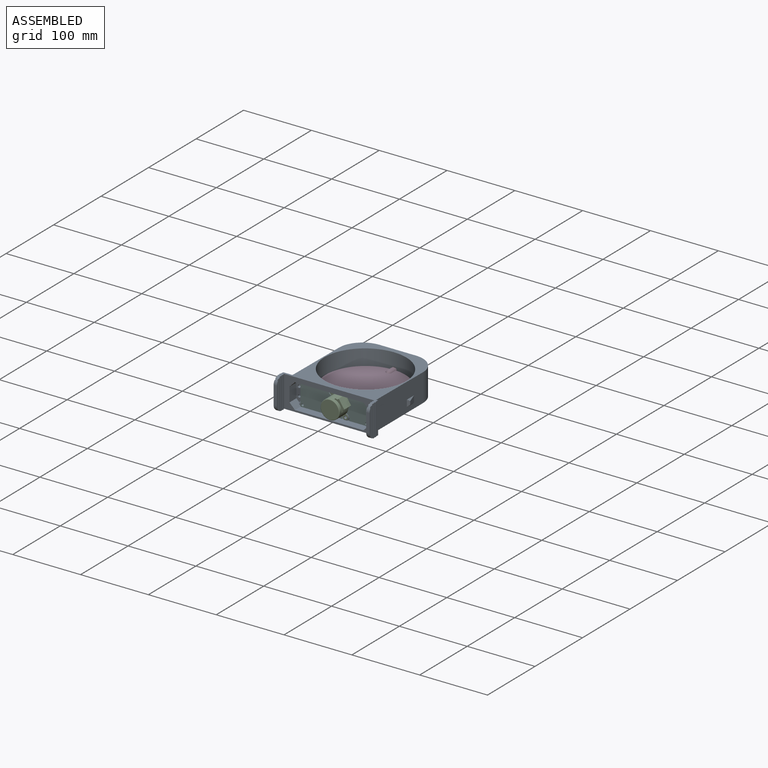
[diagram: assembled view]
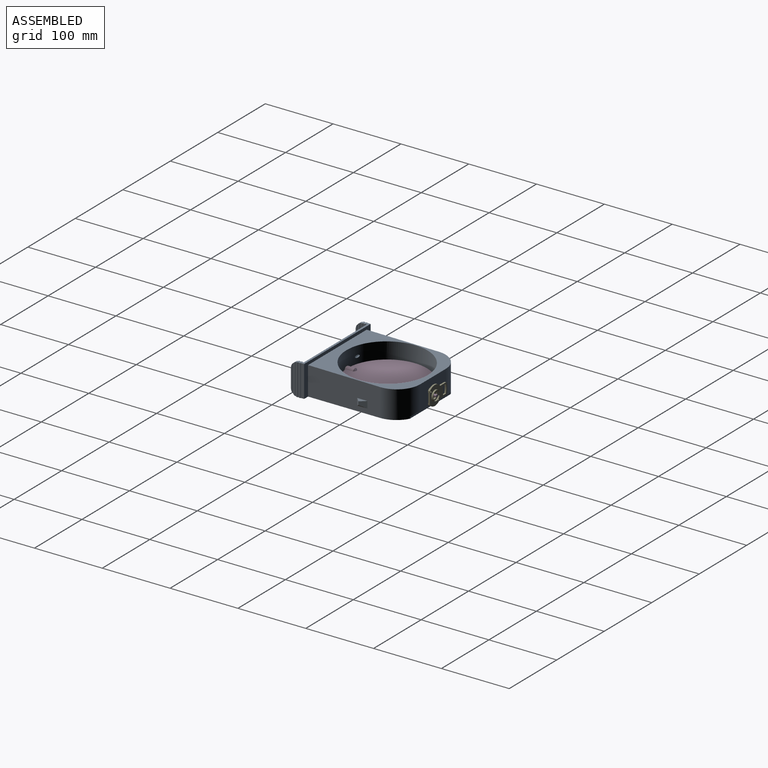
[diagram: assembled view, second angle]
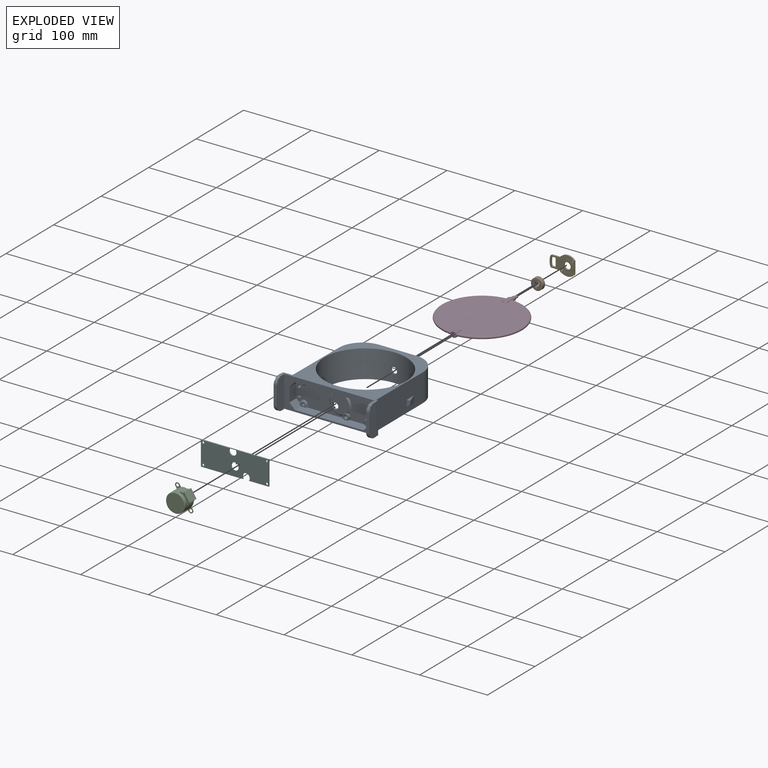
[diagram: exploded view]
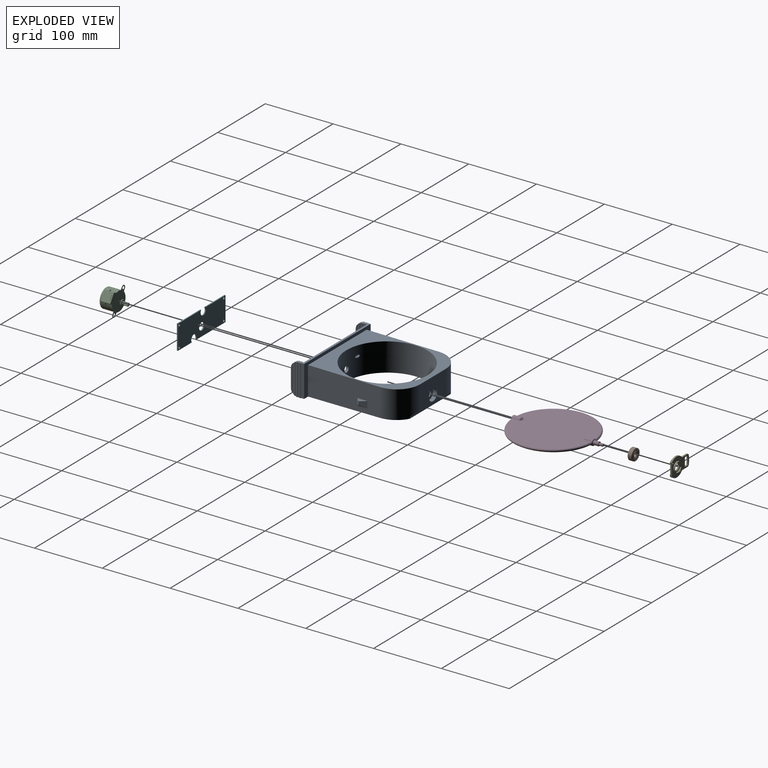
[diagram: exploded view, second angle]
FCSTD DOCUMENT  (FreeCAD 0.20R27936 (Git))
Label: Assembly
License: All rights reserved
LicenseURL: http://en.wikipedia.org/wiki/All_rights_reserved
objects: App::FeaturePython×43, Part::FeaturePython×41, App::Link×6
note: 40 computed .brp shape members not serialized (recipe doc carries the construction recipe); baked Part::Feature solids carry a one-line shape summary decoded from their .brp
EXTERNAL_REF file=OpenDucoValve.FCStd obj=Body
EXTERNAL_REF file=606Bearing.FCStd obj=Fusion
EXTERNAL_REF file=28BYJ-48.FCStd obj=Fusion
EXTERNAL_REF file=OpenDucoValve.FCStd obj=Body001
EXTERNAL_REF file=FP01-WDK02.FCStd obj=Body001
EXTERNAL_REF file=OpenDucoValve.FCStd obj=Body002

FEATURE [App::Link] Link  label="ValveBodyRefined"
  LinkedObject = -> <external OpenDucoValve.FCStd>#Body
FEATURE [App::Link] Link001  label="606Bearing"
  LinkPlacement = pos=(2.047e-13,64.5,16.5) rot=(0.989313,-0.1031,0.1031;1.58154rad)
  LinkedObject = -> <external 606Bearing.FCStd>#Fusion
  Placement = pos=(2.047e-13,64.5,16.5) rot=(0.989313,-0.1031,0.1031;1.58154rad)
FEATURE [App::Link] Link002  label="28BYJ-48"
  LinkPlacement = pos=(-2.2312e-12,-66,16.5) rot=(-0.799984,0.424279,0.424279;1.79213rad)
  LinkedObject = -> <external 28BYJ-48.FCStd>#Fusion
  Placement = pos=(-2.2312e-12,-66,16.5) rot=(-0.799984,0.424279,0.424279;1.79213rad)
FEATURE [App::Link] Link003  label="Disc"
  LinkPlacement = pos=(2.3609e-12,8.3631e-12,8.88118e-10) rot=(0,0,1;0rad)
  LinkedObject = -> <external OpenDucoValve.FCStd>#Body001
  Placement = pos=(2.3609e-12,8.3631e-12,8.88118e-10) rot=(0,0,1;0rad)
FEATURE [App::Link] Link005  label="FP01-WDK02"
  LinkPlacement = pos=(6.97438e-10,70.3,16.5) rot=(0.57735,0.57735,0.57735;4.18879rad)
  LinkedObject = -> <external FP01-WDK02.FCStd>#Body001
  Placement = pos=(6.97438e-10,70.3,16.5) rot=(0.57735,0.57735,0.57735;4.18879rad)
FEATURE [App::Link] Link006  label="PCB"
  LinkPlacement = pos=(-3.5949e-12,-1.4857e-12,-4.135e-13) rot=(0,0,1;0rad)
  LinkedObject = -> <external OpenDucoValve.FCStd>#Body002
  Placement = pos=(-3.5949e-12,-1.4857e-12,-4.135e-13) rot=(0,0,1;0rad)
FEATURE [Part::FeaturePython] Parts  # WARN: FeaturePython — macro-defined, semantics opaque (R4)
  Group = -> [Link,Link001,Link002,Link003,Link005,Link006]
  GroupMode = 0
FEATURE [Part::FeaturePython] Assembly  # WARN: FeaturePython — macro-defined, semantics opaque (R4)
  AutoRelax = true
  BuildShape = 0
  Freeze = false
  Group = -> [Constraints,Elements,Parts]
  Verbose = false
  _SolverType = 1
  _Version = 1
FEATURE [App::FeaturePython] Constraints  # WARN: FeaturePython — macro-defined, semantics opaque (R4)
  Group = -> [Constraint,Constraint001,Constraint002,Constraint003,Constraint004,Constraint005,Constraint006,Constraint007,Constraint008,Constraint009,Constraint010,Constraint011,Constraint012,Constraint013]
  _Version = 1
FEATURE [App::FeaturePython] Elements  # WARN: FeaturePython — macro-defined, semantics opaque (R4)
  Group = -> [_Element,_Element001,_Element002,_Element003,_Element004,_Element005,_Element006,_Element007,_Element008,_Element009,_Element010,_Element011,_Element012,_Element013,_Element014,_Element015,_Element016,_Element017,_Element018,_Element019,_Element020,_Element021,_Element022,_Element023,_Element024,_Element025,_Element026,_Element027,_Element028,_Element029,_Element030,_Element031,_Element032,+6 more]
FEATURE [App::FeaturePython] Constraint  label="Locked"  # WARN: FeaturePython — macro-defined, semantics opaque (R4)
  Disabled = false
  Group = -> [ElementLink]
  _ConstraintType = 0
  _Parent = -> Constraints
FEATURE [App::FeaturePython] ElementLink  label="_Element"  # link proxy (typed FeaturePython)
  LinkTransform = true
  LinkedObject = -> _Element
  _Parent = -> Constraint
FEATURE [Part::FeaturePython] _Element  # link proxy (typed FeaturePython)
  Detach = false
  LinkTransform = true
  LinkedObject = -> Link [Face2]
  _Parent = -> Elements
FEATURE [Part::FeaturePython] _Element001  # link proxy (typed FeaturePython)
  Detach = false
  LinkTransform = true
  LinkedObject = -> Link001 [Edge29]
  _Parent = -> Elements
FEATURE [Part::FeaturePython] _Element002  # link proxy (typed FeaturePython)
  Detach = false
  LinkTransform = true
  LinkedObject = -> Link [Edge341]
  _Parent = -> Elements
FEATURE [Part::FeaturePython] _Element003  # link proxy (typed FeaturePython)
  Detach = false
  LinkTransform = true
  LinkedObject = -> Link002 [Edge54]
  _Parent = -> Elements
FEATURE [Part::FeaturePython] _Element004  # link proxy (typed FeaturePython)
  Detach = false
  LinkTransform = true
  LinkedObject = -> Link [Edge408]
  _Parent = -> Elements
FEATURE [Part::FeaturePython] _Element005  # link proxy (typed FeaturePython)
  Detach = false
  LinkTransform = true
  LinkedObject = -> Link [Edge409]
  _Parent = -> Elements
FEATURE [Part::FeaturePython] _Element006  # link proxy (typed FeaturePython)
  Detach = false
  LinkTransform = true
  LinkedObject = -> Link [Face136]
  _Parent = -> Elements
FEATURE [Part::FeaturePython] _Element007  # link proxy (typed FeaturePython)
  Detach = false
  LinkTransform = true
  LinkedObject = -> Link002 [Face5]
  _Parent = -> Elements
FEATURE [Part::FeaturePython] _Element008  # link proxy (typed FeaturePython)
  Detach = false
  LinkTransform = true
  LinkedObject = -> Link [Face124]
  _Parent = -> Elements
FEATURE [Part::FeaturePython] _Element009  # link proxy (typed FeaturePython)
  Detach = false
  LinkTransform = true
  LinkedObject = -> Link [Edge396]
  _Parent = -> Elements
FEATURE [Part::FeaturePython] _Element010  # link proxy (typed FeaturePython)
  Detach = false
  LinkTransform = true
  LinkedObject = -> Link002 [Edge56]
  _Parent = -> Elements
FEATURE [Part::FeaturePython] _Element011  # link proxy (typed FeaturePython)
  Detach = false
  LinkTransform = true
  LinkedObject = -> Link [Edge366]
  _Parent = -> Elements
FEATURE [Part::FeaturePython] _Element012  # link proxy (typed FeaturePython)
  Detach = false
  LinkTransform = true
  LinkedObject = -> Link002 [Edge55]
  _Parent = -> Elements
FEATURE [App::FeaturePython] Constraint001  label="AxialAlignment"  # WARN: FeaturePython — macro-defined, semantics opaque (R4)
  Angle = 0
  AnglePitch = 0
  AngleRoll = 0
  Disabled = false
  Group = -> [ElementLink001,ElementLink002]
  LockAngle = false
  Multiply = false
  _ConstraintType = 36
  _Parent = -> Constraints
FEATURE [App::FeaturePython] ElementLink001  label="_Element013"  # link proxy (typed FeaturePython)
  LinkTransform = true
  LinkedObject = -> _Element013
  _Parent = -> Constraint001
FEATURE [Part::FeaturePython] _Element013  # link proxy (typed FeaturePython)
  Detach = false
  LinkTransform = true
  LinkedObject = -> Link001 [Face1]
  _Parent = -> Elements
FEATURE [App::FeaturePython] ElementLink002  label="_Element014"  # link proxy (typed FeaturePython)
  LinkTransform = true
  LinkedObject = -> _Element014
  _Parent = -> Constraint001
FEATURE [Part::FeaturePython] _Element014  # link proxy (typed FeaturePython)
  Detach = false
  LinkTransform = true
  LinkedObject = -> Link [Face106]
  _Parent = -> Elements
FEATURE [App::FeaturePython] Constraint002  label="PointInPlane"  # WARN: FeaturePython — macro-defined, semantics opaque (R4)
  Disabled = false
  Group = -> [ElementLink003,ElementLink004]
  _ConstraintType = 3
  _Parent = -> Constraints
FEATURE [App::FeaturePython] ElementLink003  label="_Element015"  # link proxy (typed FeaturePython)
  LinkTransform = true
  LinkedObject = -> _Element015
  _Parent = -> Constraint002
FEATURE [Part::FeaturePython] _Element015  # link proxy (typed FeaturePython)
  Detach = false
  LinkTransform = true
  LinkedObject = -> Link001 [Vertex4]
  _Parent = -> Elements
FEATURE [App::FeaturePython] ElementLink004  label="_Element016"  # link proxy (typed FeaturePython)
  LinkTransform = true
  LinkedObject = -> _Element016
  _Parent = -> Constraint002
FEATURE [Part::FeaturePython] _Element016  # link proxy (typed FeaturePython)
  Detach = false
  LinkTransform = true
  LinkedObject = -> Link [Face130]
  _Parent = -> Elements
FEATURE [App::FeaturePython] Constraint003  label="AxialAlignment001"  # WARN: FeaturePython — macro-defined, semantics opaque (R4)
  Angle = 0
  AnglePitch = 0
  AngleRoll = 0
  Disabled = false
  Group = -> [ElementLink005,ElementLink006]
  LockAngle = false
  Multiply = false
  _ConstraintType = 36
  _Parent = -> Constraints
FEATURE [App::FeaturePython] ElementLink005  label="_Element017"  # link proxy (typed FeaturePython)
  LinkTransform = true
  LinkedObject = -> _Element017
  _Parent = -> Constraint003
FEATURE [Part::FeaturePython] _Element017  # link proxy (typed FeaturePython)
  Detach = false
  LinkTransform = true
  LinkedObject = -> Link002 [Face22]
  _Parent = -> Elements
FEATURE [App::FeaturePython] ElementLink006  label="_Element018"  # link proxy (typed FeaturePython)
  LinkTransform = true
  LinkedObject = -> _Element018
  _Parent = -> Constraint003
FEATURE [Part::FeaturePython] _Element018  # link proxy (typed FeaturePython)
  Detach = false
  LinkTransform = true
  LinkedObject = -> Link [Face150]
  _Parent = -> Elements
FEATURE [App::FeaturePython] Constraint004  label="AxialAlignment002"  # WARN: FeaturePython — macro-defined, semantics opaque (R4)
  Angle = 0
  AnglePitch = 0
  AngleRoll = 0
  Disabled = false
  Group = -> [ElementLink007,ElementLink008]
  LockAngle = false
  Multiply = false
  _ConstraintType = 36
  _Parent = -> Constraints
FEATURE [App::FeaturePython] ElementLink007  label="_Element019"  # link proxy (typed FeaturePython)
  LinkTransform = true
  LinkedObject = -> _Element019
  _Parent = -> Constraint004
FEATURE [Part::FeaturePython] _Element019  # link proxy (typed FeaturePython)
  Detach = false
  LinkTransform = true
  LinkedObject = -> Link002 [Face9]
  _Parent = -> Elements
FEATURE [App::FeaturePython] ElementLink008  label="_Element020"  # link proxy (typed FeaturePython)
  LinkTransform = true
  LinkedObject = -> _Element020
  _Parent = -> Constraint004
FEATURE [Part::FeaturePython] _Element020  # link proxy (typed FeaturePython)
  Detach = false
  LinkTransform = true
  LinkedObject = -> Link [Face142]
  _Parent = -> Elements
FEATURE [App::FeaturePython] Constraint005  label="PointInPlane001"  # WARN: FeaturePython — macro-defined, semantics opaque (R4)
  Disabled = false
  Group = -> [ElementLink009,ElementLink010]
  _ConstraintType = 3
  _Parent = -> Constraints
FEATURE [App::FeaturePython] ElementLink009  label="_Element021"  # link proxy (typed FeaturePython)
  LinkTransform = true
  LinkedObject = -> _Element021
  _Parent = -> Constraint005
FEATURE [Part::FeaturePython] _Element021  # link proxy (typed FeaturePython)
  Detach = false
  LinkTransform = true
  LinkedObject = -> Link002 [Vertex2]
  _Parent = -> Elements
FEATURE [App::FeaturePython] ElementLink010  label="_Element022"  # link proxy (typed FeaturePython)
  LinkTransform = true
  LinkedObject = -> _Element022
  _Parent = -> Constraint005
FEATURE [Part::FeaturePython] _Element022  # link proxy (typed FeaturePython)
  Detach = false
  LinkTransform = true
  LinkedObject = -> Link [Face114]
  _Parent = -> Elements
FEATURE [App::FeaturePython] Constraint006  label="AxialAlignment003"  # WARN: FeaturePython — macro-defined, semantics opaque (R4)
  Angle = 0
  AnglePitch = 0
  AngleRoll = 0
  Disabled = false
  Group = -> [ElementLink011,ElementLink012]
  LockAngle = false
  Multiply = false
  _ConstraintType = 36
  _Parent = -> Constraints
FEATURE [App::FeaturePython] ElementLink011  label="_Element023"  # link proxy (typed FeaturePython)
  LinkTransform = true
  LinkedObject = -> _Element023
  _Parent = -> Constraint006
FEATURE [Part::FeaturePython] _Element023  # link proxy (typed FeaturePython)
  Detach = false
  LinkTransform = true
  LinkedObject = -> Link002 [Face59]
  _Parent = -> Elements
FEATURE [App::FeaturePython] ElementLink012  label="_Element024"  # link proxy (typed FeaturePython)
  LinkTransform = true
  LinkedObject = -> _Element024
  _Parent = -> Constraint006
FEATURE [Part::FeaturePython] _Element024  # link proxy (typed FeaturePython)
  Detach = false
  LinkTransform = true
  LinkedObject = -> Link003 [Chamfer.Face45]
  _Parent = -> Elements
FEATURE [App::FeaturePython] Constraint007  label="AxialAlignment004"  # WARN: FeaturePython — macro-defined, semantics opaque (R4)
  Angle = 0
  AnglePitch = 0
  AngleRoll = 0
  Disabled = false
  Group = -> [ElementLink013,ElementLink014]
  LockAngle = false
  Multiply = false
  _ConstraintType = 36
  _Parent = -> Constraints
FEATURE [App::FeaturePython] ElementLink013  label="_Element025"  # link proxy (typed FeaturePython)
  LinkTransform = true
  LinkedObject = -> _Element025
  _Parent = -> Constraint007
FEATURE [Part::FeaturePython] _Element025  # link proxy (typed FeaturePython)
  Detach = false
  LinkTransform = true
  LinkedObject = -> Link003 [Chamfer.Edge79]
  _Parent = -> Elements
FEATURE [App::FeaturePython] ElementLink014  label="_Element026"  # link proxy (typed FeaturePython)
  LinkTransform = true
  LinkedObject = -> _Element026
  _Parent = -> Constraint007
FEATURE [Part::FeaturePython] _Element026  # link proxy (typed FeaturePython)
  Detach = false
  LinkTransform = true
  LinkedObject = -> Link [Face39]
  _Parent = -> Elements
FEATURE [Part::FeaturePython] _Element027  # link proxy (typed FeaturePython)
  Detach = false
  LinkTransform = true
  LinkedObject = -> Link005 [Face1]
  _Parent = -> Elements
FEATURE [Part::FeaturePython] _Element028  # link proxy (typed FeaturePython)
  Detach = false
  LinkTransform = true
  LinkedObject = -> Link003 [Chamfer.Face50]
  _Parent = -> Elements
FEATURE [App::FeaturePython] Constraint008  label="AxialAlignment005"  # WARN: FeaturePython — macro-defined, semantics opaque (R4)
  Angle = 0
  AnglePitch = 0
  AngleRoll = 0
  Disabled = false
  Group = -> [ElementLink015,ElementLink016]
  LockAngle = false
  Multiply = false
  _ConstraintType = 36
  _Parent = -> Constraints
FEATURE [App::FeaturePython] ElementLink015  label="_Element027"  # link proxy (typed FeaturePython)
  LinkTransform = true
  LinkedObject = -> _Element027
  _Parent = -> Constraint008
FEATURE [App::FeaturePython] ElementLink016  label="_Element028"  # link proxy (typed FeaturePython)
  LinkTransform = true
  LinkedObject = -> _Element028
  _Parent = -> Constraint008
FEATURE [Part::FeaturePython] _Element029  # link proxy (typed FeaturePython)
  Detach = false
  LinkTransform = true
  LinkedObject = -> Link005 [Face7]
  _Parent = -> Elements
FEATURE [Part::FeaturePython] _Element030  # link proxy (typed FeaturePython)
  Detach = false
  LinkTransform = true
  LinkedObject = -> Link [Face105]
  _Parent = -> Elements
FEATURE [App::FeaturePython] Constraint009  label="PointInPlane002"  # WARN: FeaturePython — macro-defined, semantics opaque (R4)
  Disabled = false
  Group = -> [ElementLink017,ElementLink018]
  _ConstraintType = 3
  _Parent = -> Constraints
FEATURE [App::FeaturePython] ElementLink017  label="_Element031"  # link proxy (typed FeaturePython)
  LinkTransform = true
  LinkedObject = -> _Element031
  _Parent = -> Constraint009
FEATURE [Part::FeaturePython] _Element031  # link proxy (typed FeaturePython)
  Detach = false
  LinkTransform = true
  LinkedObject = -> Link005 [Vertex76]
  _Parent = -> Elements
FEATURE [App::FeaturePython] ElementLink018  label="_Element032"  # link proxy (typed FeaturePython)
  LinkTransform = true
  LinkedObject = -> _Element032
  _Parent = -> Constraint009
FEATURE [Part::FeaturePython] _Element032  # link proxy (typed FeaturePython)
  Detach = false
  LinkTransform = true
  LinkedObject = -> Link [Face41]
  _Parent = -> Elements
FEATURE [App::FeaturePython] Constraint010  label="AxialAlignment006"  # WARN: FeaturePython — macro-defined, semantics opaque (R4)
  Angle = 0
  AnglePitch = 0
  AngleRoll = 0
  Disabled = false
  Group = -> [ElementLink019,ElementLink020]
  LockAngle = false
  Multiply = false
  _ConstraintType = 36
  _Parent = -> Constraints
FEATURE [App::FeaturePython] ElementLink019  label="_Element030"  # link proxy (typed FeaturePython)
  LinkTransform = true
  LinkedObject = -> _Element030
  _Parent = -> Constraint010
FEATURE [App::FeaturePython] ElementLink020  label="_Element029"  # link proxy (typed FeaturePython)
  LinkTransform = true
  LinkedObject = -> _Element029
  _Parent = -> Constraint010
FEATURE [App::FeaturePython] Constraint011  label="PointInPlane003"  # WARN: FeaturePython — macro-defined, semantics opaque (R4)
  Disabled = false
  Group = -> [ElementLink021,ElementLink022]
  _ConstraintType = 3
  _Parent = -> Constraints
FEATURE [App::FeaturePython] ElementLink021  label="_Element033"  # link proxy (typed FeaturePython)
  LinkTransform = true
  LinkedObject = -> _Element033
  _Parent = -> Constraint011
FEATURE [Part::FeaturePython] _Element033  # link proxy (typed FeaturePython)
  Detach = false
  LinkTransform = true
  LinkedObject = -> Link006 [Pad007.Vertex7]
  _Parent = -> Elements
FEATURE [App::FeaturePython] ElementLink022  label="_Element034"  # link proxy (typed FeaturePython)
  LinkTransform = true
  LinkedObject = -> _Element034
  _Parent = -> Constraint011
FEATURE [Part::FeaturePython] _Element034  # link proxy (typed FeaturePython)
  Detach = false
  LinkTransform = true
  LinkedObject = -> Link [Face117]
  _Parent = -> Elements
FEATURE [App::FeaturePython] Constraint012  label="AxialAlignment007"  # WARN: FeaturePython — macro-defined, semantics opaque (R4)
  Angle = 0
  AnglePitch = 0
  AngleRoll = 0
  Disabled = false
  Group = -> [ElementLink023,ElementLink024]
  LockAngle = false
  Multiply = false
  _ConstraintType = 36
  _Parent = -> Constraints
FEATURE [App::FeaturePython] ElementLink023  label="_Element035"  # link proxy (typed FeaturePython)
  LinkTransform = true
  LinkedObject = -> _Element035
  _Parent = -> Constraint012
FEATURE [Part::FeaturePython] _Element035  # link proxy (typed FeaturePython)
  Detach = false
  LinkTransform = true
  LinkedObject = -> Link006 [Pad007.Face10]
  _Parent = -> Elements
FEATURE [App::FeaturePython] ElementLink024  label="_Element036"  # link proxy (typed FeaturePython)
  LinkTransform = true
  LinkedObject = -> _Element036
  _Parent = -> Constraint012
FEATURE [Part::FeaturePython] _Element036  # link proxy (typed FeaturePython)
  Detach = false
  LinkTransform = true
  LinkedObject = -> Link [Face144]
  _Parent = -> Elements
FEATURE [App::FeaturePython] Constraint013  label="AxialAlignment008"  # WARN: FeaturePython — macro-defined, semantics opaque (R4)
  Angle = 0
  AnglePitch = 0
  AngleRoll = 0
  Disabled = false
  Group = -> [ElementLink025,ElementLink026]
  LockAngle = false
  Multiply = false
  _ConstraintType = 36
  _Parent = -> Constraints
FEATURE [App::FeaturePython] ElementLink025  label="_Element037"  # link proxy (typed FeaturePython)
  LinkTransform = true
  LinkedObject = -> _Element037
  _Parent = -> Constraint013
FEATURE [Part::FeaturePython] _Element037  # link proxy (typed FeaturePython)
  Detach = false
  LinkTransform = true
  LinkedObject = -> Link [Face152]
  _Parent = -> Elements
FEATURE [App::FeaturePython] ElementLink026  label="_Element038"  # link proxy (typed FeaturePython)
  LinkTransform = true
  LinkedObject = -> _Element038
  _Parent = -> Constraint013
FEATURE [Part::FeaturePython] _Element038  # link proxy (typed FeaturePython)
  Detach = false
  LinkTransform = true
  LinkedObject = -> Link006 [Pad007.Face13]
  _Parent = -> Elements

RESOLVED EXTERNAL PARTS (link-assembly join: the EXTERNAL_REF files above that resolve inside this repo's crawl, each included once):
---- part 28BYJ-48.FCStd = doc fcstd_8f3ee90c708e ----
FCSTD DOCUMENT  (FreeCAD 0.20R27936 (Git))
Label: 28BYJ-48
License: All rights reserved
LicenseURL: http://en.wikipedia.org/wiki/All_rights_reserved
objects: Sketcher::SketchObject×13, PartDesign::Pad×8, Part::Part2DObjectPython×5, PartDesign::Body×5, PartDesign::Pocket×4, PartDesign::Fillet×1, PartDesign::Chamfer×1, Part::MultiFuse×1
note: 52 computed .brp shape members not serialized (recipe doc carries the construction recipe); baked Part::Feature solids carry a one-line shape summary decoded from their .brp

FEATURE [Sketcher::SketchObject] Sketch  label="Master Sketch"
  FullyConstrained = true
  MapMode = 5
  sketch-geometry (53):
    g0: Circle CenterX=0 CenterY=0 CenterZ=0 NormalX=0 NormalY=0 NormalZ=1 AngleXU=0 Radius=2.5
    g1: Circle CenterX=0 CenterY=0 CenterZ=0 NormalX=0 NormalY=0 NormalZ=1 AngleXU=0 Radius=4
    g2: Circle CenterX=0 CenterY=0 CenterZ=0 NormalX=0 NormalY=0 NormalZ=1 AngleXU=0 Radius=4.5
    g3: Circle CenterX=0 CenterY=-8 CenterZ=0 NormalX=0 NormalY=0 NormalZ=1 AngleXU=0 Radius=14
    g4: Circle CenterX=-17.5 CenterY=-8 CenterZ=0 NormalX=0 NormalY=0 NormalZ=1 AngleXU=0 Radius=2.1
    g5: Circle CenterX=17.5 CenterY=-8 CenterZ=0 NormalX=0 NormalY=0 NormalZ=1 AngleXU=0 Radius=2.1
    g6: Circle CenterX=17.5 CenterY=-8 CenterZ=0 NormalX=0 NormalY=0 NormalZ=1 AngleXU=0 Radius=3.5
    g7: LineSegment StartX=17.5 StartY=-4.5 StartZ=0 EndX=13.0384 EndY=-4.5 EndZ=0
    g8: LineSegment StartX=17.5 StartY=-11.5 StartZ=0 EndX=13.0384 EndY=-11.5 EndZ=0
    g9: Circle CenterX=-17.5 CenterY=-8 CenterZ=0 NormalX=0 NormalY=0 NormalZ=1 AngleXU=0 Radius=3.5
    g10: LineSegment StartX=-17.5 StartY=-4.5 StartZ=0 EndX=-13.0384 EndY=-4.5 EndZ=0
    g11: LineSegment StartX=-17.5 StartY=-11.5 StartZ=0 EndX=-13.0384 EndY=-11.5 EndZ=0
    g12: Circle CenterX=0 CenterY=-8 CenterZ=0 NormalX=0 NormalY=0 NormalZ=1 AngleXU=0 Radius=13.5
    g13: Circle CenterX=0 CenterY=-12 CenterZ=0 NormalX=0 NormalY=0 NormalZ=1 AngleXU=0 Radius=0.5
    g14: Circle CenterX=7 CenterY=-8 CenterZ=0 NormalX=0 NormalY=0 NormalZ=1 AngleXU=0 Radius=0.5
    g15: Circle CenterX=6 CenterY=-4 CenterZ=0 NormalX=0 NormalY=0 NormalZ=1 AngleXU=0 Radius=0.5
    g16: LineSegment StartX=-17.5 StartY=-8 StartZ=0 EndX=17.5 EndY=-8 EndZ=0
    g17: LineSegment StartX=-13.9642 StartY=-7 StartZ=0 EndX=-13.4629 EndY=-7 EndZ=0
    g18: LineSegment StartX=-13.9642 StartY=-9 StartZ=0 EndX=-13.4629 EndY=-9 EndZ=0
    g19: LineSegment StartX=13.4629 StartY=-7 StartZ=0 EndX=13.9642 EndY=-7 EndZ=0
    g20: LineSegment StartX=13.4629 StartY=-9 StartZ=0 EndX=13.9642 EndY=-9 EndZ=0
    g21: LineSegment StartX=-2.5 StartY=5.77498 StartZ=0 EndX=-2.5 EndY=5.2665 EndZ=0
    g22: LineSegment StartX=2.5 StartY=5.77498 StartZ=0 EndX=2.5 EndY=5.2665 EndZ=0
    g23: LineSegment StartX=-7.3 StartY=-19.9461 StartZ=0 EndX=-7.3 EndY=-25 EndZ=0
    g24: LineSegment StartX=7.3 StartY=-19.9461 StartZ=0 EndX=7.3 EndY=-25 EndZ=0
    g25: LineSegment StartX=7.3 StartY=-25 StartZ=0 EndX=-7.3 EndY=-25 EndZ=0
    g26: LineSegment StartX=-5.8 StartY=-20.7421 StartZ=0 EndX=-5.8 EndY=-23.5 EndZ=0
    g27: LineSegment StartX=-5.8 StartY=-23.5 StartZ=0 EndX=5.8 EndY=-23.5 EndZ=0
    g28: LineSegment StartX=5.8 StartY=-23.5 StartZ=0 EndX=5.8 EndY=-20.7421 EndZ=0
    g29: LineSegment StartX=-9.51847 StartY=-18.2664 StartZ=0 EndX=-9.51847 EndY=-20.7664 EndZ=0
    g30: LineSegment StartX=-9.51847 StartY=-20.7664 StartZ=0 EndX=-7.3 EndY=-22.4731 EndZ=0
    g31: LineSegment StartX=-8.40923 StartY=-19.1931 StartZ=0 EndX=-8.40923 EndY=-20.3563 EndZ=0
    g32: LineSegment StartX=-8.40923 StartY=-20.3563 StartZ=0 EndX=-7.3 EndY=-21.2096 EndZ=0
    g33: GeomPoint X=-8.40923 Y=-21.6197 Z=0
    g34: LineSegment StartX=9.51847 StartY=-18.2664 StartZ=0 EndX=9.51847 EndY=-20.7664 EndZ=0
    g35: LineSegment StartX=9.51847 StartY=-20.7664 StartZ=0 EndX=7.3 EndY=-22.4731 EndZ=0
    g36: LineSegment StartX=8.40923 StartY=-19.1931 StartZ=0 EndX=8.40923 EndY=-20.3563 EndZ=0
    g37: LineSegment StartX=8.40923 StartY=-20.3563 StartZ=0 EndX=7.3 EndY=-21.2096 EndZ=0
    g38: Circle CenterX=0 CenterY=-8 CenterZ=0 NormalX=0 NormalY=0 NormalZ=1 AngleXU=0 Radius=13
    g39: LineSegment StartX=0 StartY=-8 StartZ=0 EndX=-9.51847 EndY=1.57333 EndZ=0
    g40: LineSegment StartX=0 StartY=-8 StartZ=0 EndX=-10.8743 EndY=0 EndZ=0
    g41: GeomPoint X=-10.4715 Y=-0.296296 Z=0
    g42: GeomPoint X=-9.16593 Y=1.21877 Z=0
    g43: LineSegment StartX=9.16593 StartY=1.21877 StartZ=0 EndX=9.51847 EndY=1.57333 EndZ=0
    g44: LineSegment StartX=10.4715 StartY=-0.296296 StartZ=0 EndX=10.8743 EndY=0 EndZ=0
    g45: LineSegment StartX=-9.51847 StartY=1.57333 StartZ=0 EndX=-9.16593 EndY=1.21877 EndZ=0
    g46: LineSegment StartX=-10.8743 StartY=0 StartZ=0 EndX=-10.4715 EndY=-0.296296 EndZ=0
    g47: LineSegment StartX=-10.8743 StartY=-16 StartZ=0 EndX=-10.4715 EndY=-15.7037 EndZ=0
    g48: LineSegment StartX=-9.51847 StartY=-17.5733 StartZ=0 EndX=-9.16593 EndY=-17.2188 EndZ=0
    g49: LineSegment StartX=9.16593 StartY=-17.2188 StartZ=0 EndX=9.51847 EndY=-17.5733 EndZ=0
    g50: LineSegment StartX=10.4715 StartY=-15.7037 StartZ=0 EndX=10.8743 EndY=-16 EndZ=0
    g51: LineSegment StartX=-9.16593 StartY=-18.5823 StartZ=0 EndX=-9.16593 EndY=-17.9114 EndZ=0
    g52: LineSegment StartX=9.16593 StartY=-17.9114 StartZ=0 EndX=9.16593 EndY=-18.5823 EndZ=0
  constraints (138):
    c: Coincident(g0,g-1)
    c: Coincident(g1,g0)
    c: Coincident(g2,g0)
    c: Diameter(g0) = 5
    c: Diameter(g1) = 8
    c: Diameter(g2) = 9
    c: PointOnObject(g3,g-2)
    c: Diameter(g3) = 28
    c: DistanceY(g3,g0) = 8
    c: Symmetric(g5,g4,g-2)
    c: Equal(g5,g4)
    c: Diameter(g4) = 4.2
    c: DistanceX(g4,g5) = 35
    c: Horizontal(g5,g3)
    c: Coincident(g6,g5)
    c: Horizontal(g7)
    c: PointOnObject(g8,g6)
    c: Horizontal(g8)
    c: Tangent(g8,g6)
    c: Tangent(g7,g6) = -1.5708
    c: DistanceY(g8,g7) = 7
    c: Coincident(g9,g4)
    c: Equal(g9,g6)
    c: Symmetric(g11,g8,g-2)
    c: Symmetric(g10,g7,g-2)
    c: Symmetric(g10,g7,g-2)
    c: Symmetric(g8,g11,g-2)
    c: Coincident(g12,g3)
    c: Diameter(g12) = 27
    c: PointOnObject(g7,g12)
    c: PointOnObject(g8,g12)
    c: PointOnObject(g13,g-2)
    c: Diameter(g15) = 1
    c: Equal(g15,g14)
    c: Equal(g14,g13)
    c: DistanceY(g13,g3) = 4
    c: DistanceX(g3,g14) = 7
    c: Horizontal(g14,g3)
    c: DistanceY(g14,g15) = 4
    c: DistanceX(g15,g14) = 1
    c: Coincident(g16,g4)
    c: Coincident(g16,g5)
    c: PointOnObject(g17,g3)
    c: PointOnObject(g17,g12)
    c: Horizontal(g17)
    c: PointOnObject(g18,g3)
    c: Horizontal(g18)
    c: Symmetric(g17,g18,g16)
    c: DistanceY(g18,g17) = 2
    c: PointOnObject(g19,g3)
    c: Horizontal(g19)
    c: PointOnObject(g20,g3)
    c: Horizontal(g20)
    c: Symmetric(g20,g18,g-2)
    c: Symmetric(g19,g20,g16)
    c: PointOnObject(g21,g3)
    c: PointOnObject(g21,g12)
    c: Vertical(g21)
    c: PointOnObject(g22,g3)
    c: Vertical(g22)
    c: Symmetric(g22,g21,g-2)
    c: DistanceX(g21,g22) = 5
    c: PointOnObject(g23,g3)
    c: Vertical(g23)
    c: PointOnObject(g24,g3)
    c: Vertical(g24)
    c: Coincident(g25,g24)
    c: Coincident(g25,g23)
    c: DistanceX(g25,g25) = 14.6
    c: Symmetric(g23,g24,g-2)
    c: DistanceY(g23,g3) = 17
    c: PointOnObject(g26,g3)
    c: Vertical(g26)
    c: Coincident(g27,g26)
    c: Coincident(g28,g27)
    c: PointOnObject(g28,g3)
    c: Vertical(g28)
    c: DistanceX(g23,g26) = 1.5
    c: DistanceY(g23,g26) = 1.5
    c: Symmetric(g26,g27,g-2)
    c: PointOnObject(g29,g3)
    c: Coincident(g30,g29)
    c: Vertical(g29)
    c: DistanceY(g29,g29) = 2.5
    c: PointOnObject(g31,g3)
    c: Vertical(g31)
    c: Coincident(g32,g31)
    c: Parallel(g30,g32)
    c: Symmetric(g30,g29,g33)
    c: Vertical(g33,g31)
    c: Symmetric(g23,g23,g30)
    c: Symmetric(g30,g23,g32)
    c: PointOnObject(g34,g3)
    c: Vertical(g34)
    c: Coincident(g35,g34)
    c: PointOnObject(g36,g3)
    c: Vertical(g36)
    c: Coincident(g37,g36)
    c: Symmetric(g37,g32,g-2)
    c: Symmetric(g35,g30,g-2)
    c: Symmetric(g36,g31,g-2)
    c: Symmetric(g34,g29,g-2)
    c: Coincident(g38,g3)
    c: Diameter(g38) = 26
    c: Coincident(g39,g3)
    c: PointOnObject(g39,g12)
    c: Coincident(g40,g3)
    c: PointOnObject(g40,g12)
    c: PointOnObject(g41,g38)
    c: PointOnObject(g41,g40)
    c: PointOnObject(g42,g38)
    c: PointOnObject(g42,g39)
    c: Distance(g41,g42) = 2
    c: Horizontal(g0,g40)
    c: Symmetric(g44,g41,g-2)
    c: Symmetric(g44,g40,g-2)
    c: Symmetric(g43,g42,g-2)
    c: Symmetric(g43,g39,g-2)
    c: Coincident(g45,g39)
    c: Coincident(g45,g42)
    c: Coincident(g46,g40)
    c: Coincident(g46,g41)
    c: Symmetric(g50,g44,g16)
    c: Symmetric(g44,g50,g16)
    c: Symmetric(g49,g43,g16)
    c: Symmetric(g49,g43,g16)
    c: Symmetric(g47,g46,g16)
    c: Symmetric(g47,g46,g16)
    c: Symmetric(g48,g45,g16)
    c: Symmetric(g45,g48,g16)
    c: Vertical(g29,g48)
    c: PointOnObject(g51,g3)
    c: PointOnObject(g51,g12)
    c: Vertical(g51)
    c: PointOnObject(g52,g12)
    c: Vertical(g52)
    c: Symmetric(g52,g51,g-2)
    c: Vertical(g51,g48)
FEATURE [Part::Part2DObjectPython] Clone2D  label="Master Sketch (2D)"  # Draft 2D object (typed FeaturePython)
  Fuse = false
  Objects = -> [Sketch]
  Scale = (1,1,1)
FEATURE [Sketcher::SketchObject] Sketch001
  ExternalGeometry = -> [Clone2D]
  FullyConstrained = true
  MapMode = 5
  Support = -> [XY_Plane]
  sketch-geometry (50):
    g0: Circle CenterX=0 CenterY=0 CenterZ=0 NormalX=0 NormalY=0 NormalZ=1 AngleXU=0 Radius=4.5
    g1: Circle CenterX=6 CenterY=-4 CenterZ=0 NormalX=0 NormalY=0 NormalZ=1 AngleXU=0 Radius=0.5
    g2: Circle CenterX=7 CenterY=-8 CenterZ=0 NormalX=0 NormalY=0 NormalZ=1 AngleXU=0 Radius=0.5
    g3: Circle CenterX=0 CenterY=-12 CenterZ=0 NormalX=0 NormalY=0 NormalZ=1 AngleXU=0 Radius=0.5
    g4: Circle CenterX=17.5 CenterY=-8 CenterZ=0 NormalX=0 NormalY=0 NormalZ=1 AngleXU=0 Radius=2.1
    g5: Circle CenterX=-17.5 CenterY=-8 CenterZ=0 NormalX=0 NormalY=0 NormalZ=1 AngleXU=0 Radius=2.1
    g6: LineSegment StartX=-13.9642 StartY=-7 StartZ=0 EndX=-13.4629 EndY=-7 EndZ=0
    g7: LineSegment StartX=-13.9642 StartY=-9 StartZ=0 EndX=-13.4629 EndY=-9 EndZ=0
    g8: LineSegment StartX=13.4629 StartY=-7 StartZ=0 EndX=13.9642 EndY=-7 EndZ=0
    g9: LineSegment StartX=13.4629 StartY=-9 StartZ=0 EndX=13.9642 EndY=-9 EndZ=0
    g10: LineSegment StartX=-17.5 StartY=-4.5 StartZ=0 EndX=-13.0384 EndY=-4.5 EndZ=0
    g11: LineSegment StartX=-17.5 StartY=-11.5 StartZ=0 EndX=-13.0384 EndY=-11.5 EndZ=0
    g12: LineSegment StartX=17.5 StartY=-11.5 StartZ=0 EndX=13.0384 EndY=-11.5 EndZ=0
    g13: LineSegment StartX=13.0384 StartY=-4.5 StartZ=0 EndX=17.5 EndY=-4.5 EndZ=0
    g14: LineSegment StartX=-2.5 StartY=5.2665 StartZ=0 EndX=-2.5 EndY=5.77498 EndZ=0
    g15: LineSegment StartX=2.5 StartY=5.77498 StartZ=0 EndX=2.5 EndY=5.2665 EndZ=0
    g16: LineSegment StartX=-9.51847 StartY=1.57333 StartZ=0 EndX=-9.16593 EndY=1.21877 EndZ=0
    g17: LineSegment StartX=-10.8743 StartY=0 StartZ=0 EndX=-10.4715 EndY=-0.296296 EndZ=0
    g18: LineSegment StartX=9.16593 StartY=1.21877 StartZ=0 EndX=9.51847 EndY=1.57333 EndZ=0
    g19: LineSegment StartX=10.4715 StartY=-0.296296 StartZ=0 EndX=10.8743 EndY=0 EndZ=0
    g20: LineSegment StartX=10.4715 StartY=-15.7037 StartZ=0 EndX=10.8743 EndY=-16 EndZ=0
    g21: LineSegment StartX=9.16593 StartY=-17.2188 StartZ=0 EndX=9.51847 EndY=-17.5733 EndZ=0
    g22: LineSegment StartX=-10.8743 StartY=-16 StartZ=0 EndX=-10.4715 EndY=-15.7037 EndZ=0
    g23: LineSegment StartX=-9.16593 StartY=-17.2188 StartZ=0 EndX=-9.51847 EndY=-17.5733 EndZ=0
    g24: ArcOfCircle CenterX=5.7e-15 CenterY=-8 CenterZ=0 NormalX=0 NormalY=0 NormalZ=1 AngleXU=0 Radius=13.5 StartAngle=0.788272 EndAngle=1.38454
    g25: ArcOfCircle CenterX=5.7e-15 CenterY=-8 CenterZ=0 NormalX=0 NormalY=0 NormalZ=1 AngleXU=0 Radius=13 StartAngle=0.634274 EndAngle=0.788272
    g26: ArcOfCircle CenterX=5.7e-15 CenterY=-8 CenterZ=0 NormalX=0 NormalY=0 NormalZ=1 AngleXU=0 Radius=13.5 StartAngle=0.262255 EndAngle=0.634274
    g27: ArcOfCircle CenterX=17.5 CenterY=-8 CenterZ=0 NormalX=0 NormalY=0 NormalZ=1 AngleXU=0 Radius=3.5 StartAngle=4.71239 EndAngle=7.85398
    g28: ArcOfCircle CenterX=5.7e-15 CenterY=-8 CenterZ=0 NormalX=0 NormalY=0 NormalZ=1 AngleXU=0 Radius=14 StartAngle=6.2117 EndAngle=6.35467
    g29: ArcOfCircle CenterX=5.7e-15 CenterY=-8 CenterZ=0 NormalX=0 NormalY=0 NormalZ=1 AngleXU=0 Radius=13.5 StartAngle=6.20904 EndAngle=6.35733
    g30: ArcOfCircle CenterX=5.7e-15 CenterY=-8 CenterZ=0 NormalX=0 NormalY=0 NormalZ=1 AngleXU=0 Radius=13.5 StartAngle=3.06745 EndAngle=3.21573
    g31: ArcOfCircle CenterX=5.7e-15 CenterY=-8 CenterZ=0 NormalX=0 NormalY=0 NormalZ=1 AngleXU=0 Radius=14 StartAngle=3.0701 EndAngle=3.21308
    g32: ArcOfCircle CenterX=-17.5 CenterY=-8 CenterZ=0 NormalX=0 NormalY=0 NormalZ=1 AngleXU=0 Radius=3.5 StartAngle=1.5708 EndAngle=4.71239
    g33: ArcOfCircle CenterX=5.7e-15 CenterY=-8 CenterZ=0 NormalX=0 NormalY=0 NormalZ=1 AngleXU=0 Radius=14 StartAngle=1.39126 EndAngle=1.75033
    g34: ArcOfCircle CenterX=5.7e-15 CenterY=-8 CenterZ=0 NormalX=0 NormalY=0 NormalZ=1 AngleXU=0 Radius=13.5 StartAngle=1.75706 EndAngle=2.35332
    g35: ArcOfCircle CenterX=5.7e-15 CenterY=-8 CenterZ=0 NormalX=0 NormalY=0 NormalZ=1 AngleXU=0 Radius=13 StartAngle=2.35332 EndAngle=2.50732
    g36: ArcOfCircle CenterX=5.7e-15 CenterY=-8 CenterZ=0 NormalX=0 NormalY=0 NormalZ=1 AngleXU=0 Radius=13.5 StartAngle=2.50732 EndAngle=2.87934
    g37: ArcOfCircle CenterX=5.7e-15 CenterY=-8 CenterZ=0 NormalX=0 NormalY=0 NormalZ=1 AngleXU=0 Radius=13.5 StartAngle=3.40385 EndAngle=3.77587
    g38: ArcOfCircle CenterX=5.7e-15 CenterY=-8 CenterZ=0 NormalX=0 NormalY=0 NormalZ=1 AngleXU=0 Radius=13 StartAngle=3.77587 EndAngle=3.92986
    g39: ArcOfCircle CenterX=5.7e-15 CenterY=-8 CenterZ=0 NormalX=0 NormalY=0 NormalZ=1 AngleXU=0 Radius=13.5 StartAngle=3.92986 EndAngle=3.96605
    g40: ArcOfCircle CenterX=5.7e-15 CenterY=-8 CenterZ=0 NormalX=0 NormalY=0 NormalZ=1 AngleXU=0 Radius=13.5 StartAngle=5.64891 EndAngle=6.02093
    g41: ArcOfCircle CenterX=5.7e-15 CenterY=-8 CenterZ=0 NormalX=0 NormalY=0 NormalZ=1 AngleXU=0 Radius=13 StartAngle=5.49491 EndAngle=5.64891
    g42: LineSegment StartX=9.16593 StartY=-17.9114 StartZ=0 EndX=9.16593 EndY=-18.5823 EndZ=0
    g43: ArcOfCircle CenterX=5.7e-15 CenterY=-8 CenterZ=0 NormalX=0 NormalY=0 NormalZ=1 AngleXU=0 Radius=13.5 StartAngle=5.45873 EndAngle=5.49491
    g44: ArcOfCircle CenterX=5.7e-15 CenterY=-8 CenterZ=0 NormalX=0 NormalY=0 NormalZ=1 AngleXU=0 Radius=14 StartAngle=5.13955 EndAngle=5.42619
    g45: ArcOfCircle CenterX=5.7e-15 CenterY=-8 CenterZ=0 NormalX=0 NormalY=0 NormalZ=1 AngleXU=0 Radius=14 StartAngle=3.99859 EndAngle=4.28523
    g46: LineSegment StartX=-9.16593 StartY=-18.5823 StartZ=0 EndX=-9.16593 EndY=-17.9114 EndZ=0
    g47: LineSegment StartX=-5.8 StartY=-20.7421 StartZ=0 EndX=-5.8 EndY=-23.5 EndZ=0
    g48: LineSegment StartX=-5.8 StartY=-23.5 StartZ=0 EndX=5.8 EndY=-23.5 EndZ=0
    g49: LineSegment StartX=5.8 StartY=-23.5 StartZ=0 EndX=5.8 EndY=-20.7421 EndZ=0
  constraints (121):
    c: Coincident(g0,g-28)
    c: Equal(g-28,g0)
    c: Coincident(g1,g-29)
    c: Equal(g1,g-29)
    c: Coincident(g2,g-30)
    c: Equal(g-30,g2)
    c: Coincident(g3,g-31)
    c: Equal(g-31,g3)
    c: Coincident(g4,g-26)
    c: Equal(g-26,g4)
    c: Coincident(g5,g-17)
    c: Equal(g-17,g5)
    c: Coincident(g6,g-15)
    c: Coincident(g6,g-15)
    c: Coincident(g7,g-16)
    c: Coincident(g7,g-16)
    c: Coincident(g8,g-25)
    c: Coincident(g8,g-25)
    c: Coincident(g9,g-24)
    c: Coincident(g9,g-24)
    c: Coincident(g10,g-12)
    c: Coincident(g10,g-12)
    c: Coincident(g11,g-14)
    c: Coincident(g11,g-14)
    c: Coincident(g12,g-22)
    c: Coincident(g12,g-22)
    c: Coincident(g13,g-27)
    c: Coincident(g13,g-27)
    c: Coincident(g14,g-6)
    c: Coincident(g14,g-6)
    c: Coincident(g15,g-7)
    c: Coincident(g15,g-7)
    c: Coincident(g16,g-10)
    c: Coincident(g16,g-10)
    c: Coincident(g17,g-11)
    c: Coincident(g17,g-11)
    c: Coincident(g18,g-8)
    c: Coincident(g18,g-8)
    c: Coincident(g19,g-9)
    c: Coincident(g19,g-9)
    c: Coincident(g20,g-21)
    c: Coincident(g20,g-21)
    c: Coincident(g21,g-20)
    c: Coincident(g21,g-20)
    c: Coincident(g22,g-18)
    c: Coincident(g22,g-18)
    c: Coincident(g23,g-19)
    c: Coincident(g23,g-19)
    c: Coincident(g24,g-5)
    c: Coincident(g24,g18)
    c: Coincident(g24,g15)
    c: Coincident(g25,g24)
    c: Coincident(g25,g18)
    c: Coincident(g25,g19)
    c: Coincident(g26,g24)
    c: Coincident(g26,g19)
    c: Coincident(g26,g13)
    c: Coincident(g27,g4)
    c: Coincident(g27,g13)
    c: Coincident(g27,g12)
    c: Coincident(g28,g24)
    c: Coincident(g28,g8)
    c: Coincident(g28,g9)
    c: Coincident(g29,g24)
    c: Coincident(g29,g8)
    c: Coincident(g29,g9)
    c: Coincident(g30,g24)
    c: Coincident(g30,g7)
    c: Coincident(g30,g6)
    c: Coincident(g31,g24)
    c: Coincident(g31,g7)
    c: Coincident(g31,g6)
    c: Coincident(g32,g5)
    c: Coincident(g32,g11)
    c: Coincident(g32,g10)
    c: Coincident(g33,g24)
    c: Coincident(g33,g15)
    c: Coincident(g33,g14)
    c: Coincident(g34,g24)
    c: Coincident(g34,g14)
    c: Coincident(g34,g16)
    c: Coincident(g35,g24)
    c: Coincident(g35,g16)
    c: Coincident(g35,g17)
    c: Coincident(g36,g24)
    c: Coincident(g36,g17)
    c: Coincident(g36,g10)
    c: Coincident(g37,g24)
    c: Coincident(g37,g11)
    c: Coincident(g37,g22)
    c: Coincident(g38,g24)
    c: Coincident(g38,g22)
    c: Coincident(g38,g23)
    c: Coincident(g39,g24)
    c: Coincident(g39,g23)
    c: Coincident(g39,g-35)
    c: Coincident(g40,g24)
    c: Coincident(g40,g12)
    c: Coincident(g40,g20)
    c: Coincident(g41,g24)
    c: Coincident(g41,g20)
    c: Coincident(g41,g21)
    c: Coincident(g42,g-36)
    c: Coincident(g42,g-36)
    c: Coincident(g43,g24)
    c: Coincident(g43,g21)
    c: Coincident(g43,g42)
    c: Coincident(g44,g24)
    c: Coincident(g44,g42)
    c: Coincident(g44,g-34)
    c: Coincident(g45,g24)
    c: Coincident(g45,g-32)
    c: Coincident(g45,g-35)
    c: Coincident(g46,g45)
    c: Coincident(g46,g39)
    c: Coincident(g47,g45)
    c: Coincident(g47,g-33)
    c: Coincident(g48,g47)
    c: Coincident(g48,g-34)
    c: Coincident(g49,g48)
    c: Coincident(g49,g44)
FEATURE [PartDesign::Pad] Pad
  Direction = (0,0,1)
  Length = 0.5
  Length2 = 10
  Profile = -> Sketch001
  ReferenceAxis = -> Sketch001 [N_Axis]
  Type = 0
FEATURE [PartDesign::Body] Body  label="Part 1"
  Group = -> [Sketch001,Clone2D,Pad]
  Origin = -> Origin
  Tip = -> Pad
FEATURE [Part::Part2DObjectPython] Clone2D001  label="Master Sketch (2D)001"  # Draft 2D object (typed FeaturePython)
  Fuse = false
  Objects = -> [Sketch]
  Scale = (1,1,1)
FEATURE [Sketcher::SketchObject] Sketch002
  ExternalGeometry = -> [Clone2D001]
  FullyConstrained = true
  MapMode = 5
  Support = -> [XY_Plane001]
  sketch-geometry (1):
    g0: Circle CenterX=0 CenterY=-8 CenterZ=0 NormalX=0 NormalY=0 NormalZ=1 AngleXU=0 Radius=14
  constraints (2):
    c: Coincident(g0,g-3)
    c: Equal(g-3,g0)
FEATURE [PartDesign::Pad] Pad001
  Direction = (0,0,1)
  Length = 18.5
  Length2 = 10
  Profile = -> Sketch002
  ReferenceAxis = -> Sketch002 [N_Axis]
  Reversed = true
  Type = 0
FEATURE [Sketcher::SketchObject] Sketch003
  ExternalGeometry = -> [Clone2D001]
  FullyConstrained = true
  MapMode = 5
  Support = -> [XY_Plane001]
  sketch-geometry (43):
    g0: Circle CenterX=0 CenterY=-12 CenterZ=0 NormalX=0 NormalY=0 NormalZ=1 AngleXU=0 Radius=0.5
    g1: Circle CenterX=7 CenterY=-8 CenterZ=0 NormalX=0 NormalY=0 NormalZ=1 AngleXU=0 Radius=0.5
    g2: Circle CenterX=6 CenterY=-4 CenterZ=0 NormalX=0 NormalY=0 NormalZ=1 AngleXU=0 Radius=0.5
    g3: ArcOfCircle CenterX=0 CenterY=-8 CenterZ=0 NormalX=0 NormalY=0 NormalZ=1 AngleXU=0 Radius=13.5 StartAngle=2.50732 EndAngle=2.87934
    g4: ArcOfCircle CenterX=0 CenterY=-8 CenterZ=0 NormalX=0 NormalY=0 NormalZ=1 AngleXU=0 Radius=13 StartAngle=2.35332 EndAngle=2.50732
    g5: ArcOfCircle CenterX=0 CenterY=-8 CenterZ=0 NormalX=0 NormalY=0 NormalZ=1 AngleXU=0 Radius=13.5 StartAngle=1.75706 EndAngle=2.35332
    g6: LineSegment StartX=-13.0384 StartY=-4.5 StartZ=0 EndX=-13.5554 EndY=-4.5 EndZ=0
    g7: ArcOfCircle CenterX=0 CenterY=-8 CenterZ=0 NormalX=0 NormalY=0 NormalZ=1 AngleXU=0 Radius=14 StartAngle=1.75033 EndAngle=2.88891
    g8: LineSegment StartX=-10.8743 StartY=1.8e-15 StartZ=0 EndX=-10.4715 EndY=-0.296296 EndZ=0
    g9: LineSegment StartX=-9.16593 StartY=1.21877 StartZ=0 EndX=-9.51847 EndY=1.57333 EndZ=0
    g10: LineSegment StartX=-2.5 StartY=5.2665 StartZ=0 EndX=-2.5 EndY=5.77498 EndZ=0
    g11: LineSegment StartX=-13.9642 StartY=-7 StartZ=0 EndX=-13.4629 EndY=-7 EndZ=0
    g12: LineSegment StartX=-13.9642 StartY=-9 StartZ=0 EndX=-13.4629 EndY=-9 EndZ=0
    g13: ArcOfCircle CenterX=0 CenterY=-8 CenterZ=0 NormalX=0 NormalY=0 NormalZ=1 AngleXU=0 Radius=13.5 StartAngle=3.06745 EndAngle=3.21573
    g14: ArcOfCircle CenterX=0 CenterY=-8 CenterZ=0 NormalX=0 NormalY=0 NormalZ=1 AngleXU=0 Radius=14 StartAngle=3.0701 EndAngle=3.21308
    g15: LineSegment StartX=-9.16593 StartY=-18.5823 StartZ=0 EndX=-9.16593 EndY=-17.9114 EndZ=0
    g16: ArcOfCircle CenterX=0 CenterY=-8 CenterZ=0 NormalX=0 NormalY=0 NormalZ=1 AngleXU=0 Radius=13.5 StartAngle=3.92986 EndAngle=3.96605
    g17: LineSegment StartX=-9.51847 StartY=-17.5733 StartZ=0 EndX=-9.16593 EndY=-17.2188 EndZ=0
    g18: ArcOfCircle CenterX=0 CenterY=-8 CenterZ=0 NormalX=0 NormalY=0 NormalZ=1 AngleXU=0 Radius=13 StartAngle=3.77587 EndAngle=3.92986
    g19: LineSegment StartX=-10.4715 StartY=-15.7037 StartZ=0 EndX=-10.8743 EndY=-16 EndZ=0
    g20: ArcOfCircle CenterX=0 CenterY=-8 CenterZ=0 NormalX=0 NormalY=0 NormalZ=1 AngleXU=0 Radius=13.5 StartAngle=3.40385 EndAngle=3.77587
    g21: LineSegment StartX=-13.0384 StartY=-11.5 StartZ=0 EndX=-13.5554 EndY=-11.5 EndZ=0
    g22: ArcOfCircle CenterX=0 CenterY=-8 CenterZ=0 NormalX=0 NormalY=0 NormalZ=1 AngleXU=0 Radius=14 StartAngle=3.39427 EndAngle=3.99859
    g23: LineSegment StartX=2.5 StartY=5.77498 StartZ=0 EndX=2.5 EndY=5.2665 EndZ=0
    g24: LineSegment StartX=9.16593 StartY=1.21877 StartZ=0 EndX=9.51847 EndY=1.57333 EndZ=0
    g25: LineSegment StartX=10.4715 StartY=-0.296296 StartZ=0 EndX=10.8743 EndY=0 EndZ=0
    g26: LineSegment StartX=13.0384 StartY=-4.5 StartZ=0 EndX=13.5554 EndY=-4.5 EndZ=0
    g27: LineSegment StartX=13.0384 StartY=-11.5 StartZ=0 EndX=13.5554 EndY=-11.5 EndZ=0
    g28: ArcOfCircle CenterX=0 CenterY=-8 CenterZ=0 NormalX=0 NormalY=0 NormalZ=1 AngleXU=0 Radius=14 StartAngle=0.25268 EndAngle=1.39126
    g29: ArcOfCircle CenterX=0 CenterY=-8 CenterZ=0 NormalX=0 NormalY=0 NormalZ=1 AngleXU=0 Radius=13.5 StartAngle=0.788272 EndAngle=1.38454
    g30: ArcOfCircle CenterX=0 CenterY=-8 CenterZ=0 NormalX=0 NormalY=0 NormalZ=1 AngleXU=0 Radius=13.5 StartAngle=0.262255 EndAngle=0.634274
    g31: ArcOfCircle CenterX=0 CenterY=-8 CenterZ=0 NormalX=0 NormalY=0 NormalZ=1 AngleXU=0 Radius=13 StartAngle=0.634274 EndAngle=0.788272
    g32: ArcOfCircle CenterX=0 CenterY=-8 CenterZ=0 NormalX=0 NormalY=0 NormalZ=1 AngleXU=0 Radius=13.5 StartAngle=6.20904 EndAngle=6.35733
    g33: ArcOfCircle CenterX=0 CenterY=-8 CenterZ=0 NormalX=0 NormalY=0 NormalZ=1 AngleXU=0 Radius=14 StartAngle=6.2117 EndAngle=6.35467
    g34: LineSegment StartX=13.4629 StartY=-7 StartZ=0 EndX=13.9642 EndY=-7 EndZ=0
    g35: LineSegment StartX=13.4629 StartY=-9 StartZ=0 EndX=13.9642 EndY=-9 EndZ=0
    g36: ArcOfCircle CenterX=0 CenterY=-8 CenterZ=0 NormalX=0 NormalY=0 NormalZ=1 AngleXU=0 Radius=14 StartAngle=5.42619 EndAngle=6.03051
    g37: ArcOfCircle CenterX=0 CenterY=-8 CenterZ=0 NormalX=0 NormalY=0 NormalZ=1 AngleXU=0 Radius=13.5 StartAngle=5.64891 EndAngle=6.02093
    g38: ArcOfCircle CenterX=0 CenterY=-8 CenterZ=0 NormalX=0 NormalY=0 NormalZ=1 AngleXU=0 Radius=13.5 StartAngle=5.45873 EndAngle=5.49491
    g39: ArcOfCircle CenterX=0 CenterY=-8 CenterZ=0 NormalX=0 NormalY=0 NormalZ=1 AngleXU=0 Radius=13 StartAngle=5.49491 EndAngle=5.64891
    g40: LineSegment StartX=10.4715 StartY=-15.7037 StartZ=0 EndX=10.8743 EndY=-16 EndZ=0
    g41: LineSegment StartX=9.16593 StartY=-17.2188 StartZ=0 EndX=9.51847 EndY=-17.5733 EndZ=0
    g42: LineSegment StartX=9.16593 StartY=-17.9114 StartZ=0 EndX=9.16593 EndY=-18.5823 EndZ=0
  constraints (110):
    c: Coincident(g0,g-5)
    c: Coincident(g1,g-4)
    c: Coincident(g2,g-3)
    c: Equal(g-3,g2)
    c: Equal(g-4,g1)
    c: Equal(g-5,g0)
    c: Coincident(g3,g-8)
    c: Coincident(g3,g-15)
    c: Coincident(g3,g-14)
    c: PointOnObject(g4,g-2)
    c: Coincident(g4,g-14)
    c: Coincident(g4,g-13)
    c: Coincident(g5,g3)
    c: Coincident(g5,g-13)
    c: Coincident(g5,g-9)
    c: Coincident(g6,g3)
    c: PointOnObject(g6,g-6)
    c: Horizontal(g6)
    c: Coincident(g7,g3)
    c: Coincident(g7,g6)
    c: Coincident(g7,g-9)
    c: Coincident(g8,g3)
    c: Coincident(g8,g4)
    c: Coincident(g9,g4)
    c: Coincident(g9,g5)
    c: Coincident(g10,g5)
    c: Coincident(g10,g7)
    c: Coincident(g11,g-16)
    c: Coincident(g11,g-16)
    c: Coincident(g12,g-17)
    c: Coincident(g12,g-17)
    c: Coincident(g13,g3)
    c: Coincident(g13,g12)
    c: Coincident(g13,g11)
    c: Coincident(g14,g3)
    c: Coincident(g14,g11)
    c: Coincident(g14,g12)
    c: Coincident(g15,g-21)
    c: Coincident(g15,g-21)
    c: Coincident(g16,g3)
    c: Coincident(g16,g15)
    c: Coincident(g16,g-20)
    c: Coincident(g17,g16)
    c: Coincident(g17,g-20)
    c: Coincident(g18,g3)
    c: Coincident(g18,g17)
    c: Coincident(g18,g-19)
    c: Coincident(g19,g18)
    c: Coincident(g19,g-19)
    c: Coincident(g20,g3)
    c: Coincident(g20,g19)
    c: Coincident(g20,g-18)
    c: Coincident(g21,g20)
    c: PointOnObject(g21,g-6)
    c: Horizontal(g21)
    c: Coincident(g22,g3)
    c: Coincident(g22,g21)
    c: Coincident(g22,g15)
    c: Coincident(g23,g-10)
    c: Coincident(g23,g-10)
    c: Coincident(g24,g-11)
    c: Coincident(g24,g-11)
    c: Coincident(g25,g-12)
    c: Coincident(g25,g-12)
    c: Coincident(g26,g-28)
    c: PointOnObject(g26,g-6)
    c: Horizontal(g26)
    c: Coincident(g27,g-25)
    c: PointOnObject(g27,g-6)
    c: Horizontal(g27)
    c: Coincident(g28,g3)
    c: Coincident(g28,g23)
    c: Coincident(g28,g26)
    c: Coincident(g29,g3)
    c: Coincident(g29,g23)
    c: Coincident(g29,g24)
    c: Coincident(g30,g3)
    c: Coincident(g30,g25)
    c: Coincident(g30,g26)
    c: Coincident(g31,g3)
    c: Coincident(g31,g25)
    c: Coincident(g31,g24)
    c: Coincident(g32,g3)
    c: Coincident(g32,g-26)
    c: Coincident(g32,g-27)
    c: Coincident(g33,g3)
    c: Coincident(g33,g-26)
    c: Coincident(g33,g-27)
    c: Coincident(g34,g32)
    c: Coincident(g34,g33)
    c: Coincident(g35,g32)
    c: Coincident(g35,g33)
    c: Coincident(g36,g3)
    c: Coincident(g36,g27)
    c: Coincident(g36,g-22)
    c: Coincident(g37,g3)
    c: Coincident(g37,g27)
    c: Coincident(g37,g-24)
    c: Coincident(g38,g3)
    c: Coincident(g38,g-22)
    c: Coincident(g38,g-23)
    c: Coincident(g39,g3)
    c: Coincident(g39,g-23)
    c: Coincident(g39,g-24)
    c: Coincident(g40,g39)
    c: Coincident(g40,g37)
    c: Coincident(g41,g39)
    c: Coincident(g41,g38)
    c: Coincident(g42,g38)
    c: Coincident(g42,g36)
FEATURE [PartDesign::Pad] Pad002
  BaseFeature = -> Pad001
  Direction = (0,0,1)
  Length = 0.5
  Length2 = 10
  Profile = -> Sketch003
  ReferenceAxis = -> Sketch003 [N_Axis]
  Type = 0
FEATURE [Sketcher::SketchObject] Sketch004
  ExternalGeometry = -> [Clone2D001]
  FullyConstrained = true
  MapMode = 5
  Support = -> [XY_Plane001]
  sketch-geometry (2):
    g0: Circle CenterX=0 CenterY=0 CenterZ=0 NormalX=0 NormalY=0 NormalZ=1 AngleXU=0 Radius=4.5
    g1: Circle CenterX=0 CenterY=0 CenterZ=0 NormalX=0 NormalY=0 NormalZ=1 AngleXU=0 Radius=4
  constraints (4):
    c: Coincident(g0,g-4)
    c: Coincident(g1,g0)
    c: Equal(g1,g-4)
    c: Equal(g-3,g0)
FEATURE [PartDesign::Pad] Pad003
  BaseFeature = -> Pad002
  Direction = (0,0,1)
  Length = 2
  Length2 = 10
  Profile = -> Sketch004
  ReferenceAxis = -> Sketch004 [N_Axis]
  Type = 0
FEATURE [Sketcher::SketchObject] Sketch006
  FullyConstrained = false
  MapMode = 5
  Placement = pos=(0,0,10.5) rot=(0,0,1;0rad)
  sketch-geometry (4):
    g0: LineSegment StartX=-2 StartY=1.5 StartZ=0 EndX=2 EndY=1.5 EndZ=0
    g1: LineSegment StartX=-2 StartY=-1.5 StartZ=0 EndX=2 EndY=-1.5 EndZ=0
    g2: ArcOfCircle CenterX=0 CenterY=0 CenterZ=0 NormalX=0 NormalY=0 NormalZ=1 AngleXU=0 Radius=2.5 StartAngle=0.643501 EndAngle=2.49809
    g3: ArcOfCircle CenterX=0 CenterY=0 CenterZ=0 NormalX=0 NormalY=0 NormalZ=1 AngleXU=0 Radius=2.5 StartAngle=3.78509 EndAngle=5.63968
  constraints (8):
    c: Horizontal(g0)
    c: Horizontal(g1)
    c: DistanceY(g1,g0) = 3
    c: Coincident(g2,g0)
    c: Coincident(g2,g0)
    c: Coincident(g3,g2)
    c: Coincident(g3,g1)
    c: Coincident(g3,g1)
FEATURE [PartDesign::Pocket] Pocket
  BaseFeature = -> Pad003
  Direction = (0,0,-1)
  Length = 6
  Length2 = 5
  Profile = -> Sketch006
  ReferenceAxis = -> Sketch006 [N_Axis]
  Type = 0
FEATURE [PartDesign::Fillet] Fillet
  Base = -> Pocket [Edge15]
  BaseFeature = -> Pocket
  Radius = 1
  SupportTransform = false
  UseAllEdges = false
FEATURE [PartDesign::Body] Body001  label="Part 2"
  Group = -> [Clone2D001,Sketch002,Pad001,Sketch003,Pad002,Sketch004,Pad003,Sketch006,Pocket,Fillet]
  Origin = -> Origin001
  Tip = -> Fillet
FEATURE [Part::Part2DObjectPython] Clone2D002  label="Master Sketch (2D)002"  # Draft 2D object (typed FeaturePython)
  Fuse = false
  Objects = -> [Sketch]
  Scale = (1,1,1)
FEATURE [Sketcher::SketchObject] Sketch007
  ExternalGeometry = -> [Clone2D002]
  FullyConstrained = true
  MapMode = 5
  Support = -> [XY_Plane002]
  sketch-geometry (2):
    g0: Circle CenterX=0 CenterY=0 CenterZ=0 NormalX=0 NormalY=0 NormalZ=1 AngleXU=0 Radius=4
    g1: Circle CenterX=0 CenterY=0 CenterZ=0 NormalX=0 NormalY=0 NormalZ=1 AngleXU=0 Radius=2.5
  constraints (4):
    c: Coincident(g1,g-4)
    c: Coincident(g0,g1)
    c: Equal(g-3,g1)
    c: Equal(g-4,g0)
FEATURE [PartDesign::Pad] Pad005
  Direction = (0,0,1)
  Length = 2
  Length2 = 10
  Profile = -> Sketch007
  ReferenceAxis = -> Sketch007 [N_Axis]
  Type = 0
FEATURE [PartDesign::Body] Body002  label="Part 3"
  Group = -> [Clone2D002,Sketch007,Pad005]
  Origin = -> Origin002
  Tip = -> Pad005
FEATURE [Part::Part2DObjectPython] Clone2D003  label="Master Sketch (2D)003"  # Draft 2D object (typed FeaturePython)
  Fuse = false
  Objects = -> [Sketch]
  Scale = (1,1,1)
FEATURE [Sketcher::SketchObject] Sketch008
  ExternalGeometry = -> [Clone2D003]
  FullyConstrained = true
  MapMode = 5
  Support = -> [XY_Plane003]
  sketch-geometry (8):
    g0: LineSegment StartX=-9.51847 StartY=-18.2664 StartZ=0 EndX=-9.51847 EndY=-20.7664 EndZ=0
    g1: LineSegment StartX=-9.51847 StartY=-20.7664 StartZ=0 EndX=-7.3 EndY=-22.4731 EndZ=0
    g2: LineSegment StartX=-7.3 StartY=-22.4731 StartZ=0 EndX=-7.3 EndY=-25 EndZ=0
    g3: LineSegment StartX=-7.3 StartY=-25 StartZ=0 EndX=7.3 EndY=-25 EndZ=0
    g4: LineSegment StartX=7.3 StartY=-25 StartZ=0 EndX=7.3 EndY=-22.4731 EndZ=0
    g5: LineSegment StartX=7.3 StartY=-22.4731 StartZ=0 EndX=9.51847 EndY=-20.7664 EndZ=0
    g6: LineSegment StartX=9.51847 StartY=-20.7664 StartZ=0 EndX=9.51847 EndY=-18.2664 EndZ=0
    g7: ArcOfCircle CenterX=0 CenterY=-8 CenterZ=0 NormalX=0 NormalY=0 NormalZ=1 AngleXU=0 Radius=14 StartAngle=3.96478 EndAngle=5.46
  constraints (17):
    c: Coincident(g0,g-3)
    c: Coincident(g0,g-4)
    c: Coincident(g1,g0)
    c: Coincident(g1,g-4)
    c: Coincident(g2,g1)
    c: Coincident(g2,g-7)
    c: Coincident(g3,g2)
    c: Coincident(g3,g-8)
    c: Coincident(g4,g3)
    c: Coincident(g4,g-9)
    c: Coincident(g5,g4)
    c: Coincident(g5,g-10)
    c: Coincident(g6,g5)
    c: Coincident(g6,g-10)
    c: Coincident(g7,g-5)
    c: Coincident(g7,g0)
    c: Coincident(g7,g6)
FEATURE [PartDesign::Pad] Pad006
  Direction = (0,0,1)
  Length = 14
  Length2 = 10
  Profile = -> Sketch008
  ReferenceAxis = -> Sketch008 [N_Axis]
  Reversed = true
  Type = 0
FEATURE [Sketcher::SketchObject] Sketch009
  ExternalGeometry = -> [Clone2D003]
  FullyConstrained = true
  MapMode = 5
  Support = -> [XY_Plane003]
  sketch-geometry (12):
    g0: LineSegment StartX=-9.51847 StartY=-18.2664 StartZ=0 EndX=-9.51847 EndY=-20.7664 EndZ=0
    g1: LineSegment StartX=-9.51847 StartY=-20.7664 StartZ=0 EndX=-7.3 EndY=-22.4731 EndZ=0
    g2: LineSegment StartX=-7.3 StartY=-22.4731 StartZ=0 EndX=-7.3 EndY=-25 EndZ=0
    g3: LineSegment StartX=-7.3 StartY=-25 StartZ=0 EndX=7.3 EndY=-25 EndZ=0
    g4: LineSegment StartX=7.3 StartY=-25 StartZ=0 EndX=7.3 EndY=-22.4731 EndZ=0
    g5: LineSegment StartX=7.3 StartY=-22.4731 StartZ=0 EndX=9.51847 EndY=-20.7664 EndZ=0
    g6: LineSegment StartX=9.51847 StartY=-20.7664 StartZ=0 EndX=9.51847 EndY=-18.2664 EndZ=0
    g7: LineSegment StartX=5.8 StartY=-20.7421 StartZ=0 EndX=5.8 EndY=-23.5 EndZ=0
    g8: LineSegment StartX=5.8 StartY=-23.5 StartZ=0 EndX=-5.8 EndY=-23.5 EndZ=0
    g9: LineSegment StartX=-5.8 StartY=-23.5 StartZ=0 EndX=-5.8 EndY=-20.7421 EndZ=0
    g10: ArcOfCircle CenterX=0 CenterY=-8 CenterZ=0 NormalX=0 NormalY=0 NormalZ=1 AngleXU=0 Radius=14 StartAngle=3.96478 EndAngle=4.28523
    g11: ArcOfCircle CenterX=0 CenterY=-8 CenterZ=0 NormalX=0 NormalY=0 NormalZ=1 AngleXU=0 Radius=14 StartAngle=5.13955 EndAngle=5.46
  constraints (26):
    c: Coincident(g0,g-3)
    c: Coincident(g0,g-4)
    c: Coincident(g1,g0)
    c: Coincident(g1,g-4)
    c: Coincident(g2,g1)
    c: Coincident(g2,g-13)
    c: Coincident(g3,g2)
    c: Coincident(g3,g-12)
    c: Coincident(g4,g3)
    c: Coincident(g4,g-11)
    c: Coincident(g5,g4)
    c: Coincident(g5,g-11)
    c: Coincident(g6,g5)
    c: Coincident(g6,g-9)
    c: Coincident(g7,g-8)
    c: Coincident(g7,g-8)
    c: Coincident(g8,g7)
    c: Coincident(g8,g-7)
    c: Coincident(g9,g8)
    c: Coincident(g9,g-6)
    c: Coincident(g10,g-5)
    c: Coincident(g10,g9)
    c: Coincident(g10,g0)
    c: Coincident(g11,g10)
    c: Coincident(g11,g7)
    c: Coincident(g11,g6)
FEATURE [PartDesign::Pad] Pad007
  BaseFeature = -> Pad006
  Direction = (0,0,1)
  Length = 0.5
  Length2 = 10
  Profile = -> Sketch009
  ReferenceAxis = -> Sketch009 [N_Axis]
  Type = 0
FEATURE [Sketcher::SketchObject] Sketch010
  ExternalGeometry = -> [Clone2D003]
  FullyConstrained = true
  MapMode = 5
  Support = -> [XY_Plane003]
  sketch-geometry (12):
    g0: LineSegment StartX=-9.51847 StartY=-18.2664 StartZ=0 EndX=-9.51847 EndY=-20.7664 EndZ=0
    g1: LineSegment StartX=-9.51847 StartY=-20.7664 StartZ=0 EndX=-7.3 EndY=-22.4731 EndZ=0
    g2: LineSegment StartX=9.51847 StartY=-18.2664 StartZ=0 EndX=9.51847 EndY=-20.7664 EndZ=0
    g3: LineSegment StartX=9.51847 StartY=-20.7664 StartZ=0 EndX=7.3 EndY=-22.4731 EndZ=0
    g4: LineSegment StartX=7.3 StartY=-22.4731 StartZ=0 EndX=7.3 EndY=-21.2096 EndZ=0
    g5: LineSegment StartX=7.3 StartY=-21.2096 StartZ=0 EndX=8.40923 EndY=-20.3563 EndZ=0
    g6: LineSegment StartX=8.40923 StartY=-20.3563 StartZ=0 EndX=8.40923 EndY=-19.1931 EndZ=0
    g7: LineSegment StartX=-8.40923 StartY=-19.1931 StartZ=0 EndX=-8.40923 EndY=-20.3563 EndZ=0
    g8: LineSegment StartX=-8.40923 StartY=-20.3563 StartZ=0 EndX=-7.3 EndY=-21.2096 EndZ=0
    g9: LineSegment StartX=-7.3 StartY=-21.2096 StartZ=0 EndX=-7.3 EndY=-22.4731 EndZ=0
    g10: ArcOfCircle CenterX=2.24e-14 CenterY=-8 CenterZ=0 NormalX=0 NormalY=0 NormalZ=1 AngleXU=0 Radius=14 StartAngle=3.96478 EndAngle=4.06806
    g11: ArcOfCircle CenterX=2.24e-14 CenterY=-8 CenterZ=0 NormalX=0 NormalY=0 NormalZ=1 AngleXU=0 Radius=14 StartAngle=5.35671 EndAngle=5.46
  constraints (26):
    c: Coincident(g0,g-3)
    c: Coincident(g0,g-7)
    c: Coincident(g1,g0)
    c: Coincident(g1,g-7)
    c: Coincident(g2,g-13)
    c: Coincident(g2,g-13)
    c: Coincident(g3,g2)
    c: Coincident(g3,g-12)
    c: Coincident(g4,g3)
    c: Coincident(g4,g-11)
    c: Coincident(g5,g4)
    c: Coincident(g5,g-11)
    c: Coincident(g6,g5)
    c: Coincident(g6,g-10)
    c: Coincident(g7,g-5)
    c: Coincident(g7,g-6)
    c: Coincident(g8,g7)
    c: Coincident(g8,g-6)
    c: Coincident(g9,g8)
    c: Coincident(g9,g1)
    c: Coincident(g10,g-4)
    c: Coincident(g10,g7)
    c: Coincident(g10,g0)
    c: Coincident(g11,g10)
    c: Coincident(g11,g6)
    c: Coincident(g11,g2)
FEATURE [PartDesign::Pocket] Pocket001
  BaseFeature = -> Pad007
  Direction = (0,0,-1)
  Length = 17
  Length2 = 8
  Midplane = true
  Profile = -> Sketch010
  ReferenceAxis = -> Sketch010 [N_Axis]
  Type = 0
FEATURE [Sketcher::SketchObject] Sketch011
  FullyConstrained = true
  MapMode = 5
  Placement = pos=(0,-25,0) rot=(1,0,0;1.5708rad)
  Support = -> [Pocket001]
  sketch-geometry (9):
    g0: LineSegment StartX=-3.75 StartY=0.25 StartZ=0 EndX=3.75 EndY=0.25 EndZ=0
    g1: LineSegment StartX=3.75 StartY=0.25 StartZ=0 EndX=3.75 EndY=-1.25 EndZ=0
    g2: LineSegment StartX=3.75 StartY=-1.25 StartZ=0 EndX=-3.75 EndY=-1.25 EndZ=0
    g3: LineSegment StartX=-3.75 StartY=-1.25 StartZ=0 EndX=-3.75 EndY=0.25 EndZ=0
    g4: Circle CenterX=0 CenterY=-0.5 CenterZ=0 NormalX=0 NormalY=0 NormalZ=1 AngleXU=0 Radius=0.5
    g5: Circle CenterX=-1.5 CenterY=-0.5 CenterZ=0 NormalX=0 NormalY=0 NormalZ=1 AngleXU=0 Radius=0.5
    g6: Circle CenterX=-3 CenterY=-0.5 CenterZ=0 NormalX=0 NormalY=0 NormalZ=1 AngleXU=0 Radius=0.5
    g7: Circle CenterX=1.5 CenterY=-0.5 CenterZ=0 NormalX=0 NormalY=0 NormalZ=1 AngleXU=0 Radius=0.5
    g8: Circle CenterX=3 CenterY=-0.5 CenterZ=0 NormalX=0 NormalY=0 NormalZ=1 AngleXU=0 Radius=0.5
  constraints (24):
    c: Coincident(g0,g1)
    c: Coincident(g1,g2)
    c: Coincident(g2,g3)
    c: Coincident(g3,g0)
    c: Horizontal(g2)
    c: Vertical(g1)
    c: Vertical(g3)
    c: DistanceX(g2,g2) = 7.5
    c: DistanceY(g1,g1) = 1.5
    c: Symmetric(g0,g0,g-2)
    c: DistanceY(g-1,g0) = 0.25
    c: PointOnObject(g4,g-2)
    c: Diameter(g4) = 1
    c: PointOnObject(g-1,g4)
    c: Horizontal(g6,g5)
    c: Horizontal(g5,g4)
    c: Equal(g6,g5)
    c: Equal(g5,g4)
    c: Equal(g4,g7)
    c: Equal(g7,g8)
    c: Symmetric(g8,g6,g-2)
    c: Symmetric(g5,g7,g-2)
    c: DistanceX(g4,g7) = 1.5
    c: DistanceX(g7,g8) = 1.5
FEATURE [PartDesign::Pocket] Pocket002
  BaseFeature = -> Pocket001
  Direction = (0,1,-2e-16)
  Length = 0.25
  Length2 = 5
  Profile = -> Sketch011
  ReferenceAxis = -> Sketch011 [N_Axis]
  Type = 0
FEATURE [PartDesign::Body] Body003  label="Part 4"
  Group = -> [Clone2D003,Sketch008,Pad006,Sketch009,Pad007,Sketch010,Pocket001,Sketch011,Pocket002]
  Origin = -> Origin003
  Tip = -> Pocket002
FEATURE [Part::Part2DObjectPython] Clone2D004  label="Master Sketch (2D)004"  # Draft 2D object (typed FeaturePython)
  Fuse = false
  Objects = -> [Sketch]
  Scale = (1,1,1)
FEATURE [Sketcher::SketchObject] Sketch012
  ExternalGeometry = -> [Clone2D004]
  FullyConstrained = true
  MapMode = 5
  Support = -> [XY_Plane004]
  sketch-geometry (1):
    g0: Circle CenterX=0 CenterY=0 CenterZ=0 NormalX=0 NormalY=0 NormalZ=1 AngleXU=0 Radius=2.5
  constraints (2):
    c: Coincident(g0,g-3)
    c: Equal(g-3,g0)
FEATURE [PartDesign::Pad] Pad008
  Direction = (0,0,1)
  Length = 10.5
  Length2 = 10
  Profile = -> Sketch012
  ReferenceAxis = -> Sketch012 [N_Axis]
  Type = 0
FEATURE [Sketcher::SketchObject] Sketch013
  ExternalGeometry = -> [Pad008]
  FullyConstrained = true
  MapMode = 5
  Placement = pos=(0,0,10.5) rot=(0,0,1;0rad)
  Support = -> [Pad008]
  sketch-geometry (4):
    g0: LineSegment StartX=-2 StartY=1.5 StartZ=0 EndX=2 EndY=1.5 EndZ=0
    g1: LineSegment StartX=-2 StartY=-1.5 StartZ=0 EndX=2 EndY=-1.5 EndZ=0
    g2: ArcOfCircle CenterX=0 CenterY=0 CenterZ=0 NormalX=0 NormalY=0 NormalZ=1 AngleXU=0 Radius=2.5 StartAngle=0.643501 EndAngle=2.49809
    g3: ArcOfCircle CenterX=0 CenterY=0 CenterZ=0 NormalX=0 NormalY=0 NormalZ=1 AngleXU=0 Radius=2.5 StartAngle=3.78509 EndAngle=5.63968
  constraints (12):
    c: PointOnObject(g0,g-3)
    c: Horizontal(g0)
    c: PointOnObject(g1,g-3)
    c: Horizontal(g1)
    c: Equal(g1,g0)
    c: Coincident(g2,g-3)
    c: Coincident(g2,g0)
    c: Coincident(g2,g0)
    c: Coincident(g3,g2)
    c: Coincident(g3,g1)
    c: Coincident(g3,g1)
    c: DistanceY(g1,g0) = 3
FEATURE [PartDesign::Pocket] Pocket003
  BaseFeature = -> Pad008
  Direction = (0,0,-1)
  Length = 6
  Length2 = 5
  Profile = -> Sketch013
  ReferenceAxis = -> Sketch013 [N_Axis]
  Type = 0
FEATURE [PartDesign::Chamfer] Chamfer
  Angle = 45
  Base = -> Pocket003 [Edge7,Edge3,Edge11]
  BaseFeature = -> Pocket003
  ChamferType = 0
  FlipDirection = false
  Size = 0.5
  Size2 = 1
  SupportTransform = false
  UseAllEdges = false
FEATURE [PartDesign::Body] Body004  label="Part 5"
  Group = -> [Clone2D004,Sketch012,Pad008,Sketch013,Pocket003,Chamfer]
  Origin = -> Origin004
  Tip = -> Chamfer
FEATURE [Part::MultiFuse] Fusion
  Shapes = -> [Body,Body001,Body002,Body003,Body004]
---- part 606Bearing.FCStd = doc fcstd_1a0f9737e349 ----
FCSTD DOCUMENT  (FreeCAD 0.20R27936 (Git))
Label: 606Bearing
License: All rights reserved
LicenseURL: http://en.wikipedia.org/wiki/All_rights_reserved
objects: Sketcher::SketchObject×3, PartDesign::Pad×3, PartDesign::Chamfer×3, PartDesign::Body×3, Part::MultiFuse×1
note: 19 computed .brp shape members not serialized (recipe doc carries the construction recipe); baked Part::Feature solids carry a one-line shape summary decoded from their .brp

FEATURE [Sketcher::SketchObject] Sketch
  FullyConstrained = true
  MapMode = 5
  Support = -> [XY_Plane]
  sketch-geometry (2):
    g0: Circle CenterX=0 CenterY=0 CenterZ=0 NormalX=0 NormalY=0 NormalZ=1 AngleXU=0 Radius=7.4
    g1: Circle CenterX=0 CenterY=0 CenterZ=0 NormalX=0 NormalY=0 NormalZ=1 AngleXU=0 Radius=8.5
  constraints (4):
    c: Coincident(g0,g-1)
    c: Diameter(g0) = 14.8
    c: Coincident(g1,g0)
    c: Diameter(g1) = 17
FEATURE [PartDesign::Pad] Pad
  Direction = (0,0,1)
  Length = 6
  Length2 = 10
  Midplane = true
  Profile = -> Sketch
  ReferenceAxis = -> Sketch [N_Axis]
  Type = 0
FEATURE [Sketcher::SketchObject] Sketch001
  FullyConstrained = true
  MapMode = 5
  Support = -> [XY_Plane001]
  sketch-geometry (2):
    g0: Circle CenterX=0 CenterY=0 CenterZ=0 NormalX=0 NormalY=0 NormalZ=1 AngleXU=0 Radius=3
    g1: Circle CenterX=0 CenterY=0 CenterZ=0 NormalX=0 NormalY=0 NormalZ=1 AngleXU=0 Radius=4.5
  constraints (4):
    c: Coincident(g0,g-1)
    c: Coincident(g1,g0)
    c: Diameter(g0) = 6
    c: Diameter(g1) = 9
FEATURE [PartDesign::Pad] Pad001
  Direction = (0,0,1)
  Length = 6
  Length2 = 10
  Midplane = true
  Profile = -> Sketch001
  ReferenceAxis = -> Sketch001 [N_Axis]
  Type = 0
FEATURE [Sketcher::SketchObject] Sketch002
  FullyConstrained = true
  MapMode = 5
  Support = -> [XY_Plane002]
  sketch-geometry (2):
    g0: Circle CenterX=0 CenterY=0 CenterZ=0 NormalX=0 NormalY=0 NormalZ=1 AngleXU=0 Radius=4.5
    g1: Circle CenterX=0 CenterY=0 CenterZ=0 NormalX=0 NormalY=0 NormalZ=1 AngleXU=0 Radius=7.4
  constraints (4):
    c: Coincident(g0,g-1)
    c: Coincident(g1,g0)
    c: Diameter(g0) = 9
    c: Diameter(g1) = 14.8
FEATURE [PartDesign::Pad] Pad002
  Direction = (0,0,1)
  Length = 6
  Length2 = 10
  Midplane = true
  Profile = -> Sketch002
  ReferenceAxis = -> Sketch002 [N_Axis]
  Type = 0
FEATURE [PartDesign::Chamfer] Chamfer
  Angle = 45
  Base = -> Pad001 [Face4,Face3]
  BaseFeature = -> Pad001
  ChamferType = 0
  FlipDirection = false
  Size = 0.5
  Size2 = 1
  SupportTransform = false
  UseAllEdges = false
FEATURE [PartDesign::Body] Body001  label="InnerRace"
  Group = -> [Sketch001,Pad001,Chamfer]
  Origin = -> Origin001
  Tip = -> Chamfer
FEATURE [PartDesign::Chamfer] Chamfer001
  Angle = 45
  Base = -> Pad002 [Face3,Face4]
  BaseFeature = -> Pad002
  ChamferType = 0
  FlipDirection = false
  Size = 0.5
  Size2 = 1
  SupportTransform = false
  UseAllEdges = false
FEATURE [PartDesign::Body] Body002  label="Seal"
  Group = -> [Sketch002,Pad002,Chamfer001]
  Origin = -> Origin002
  Tip = -> Chamfer001
FEATURE [PartDesign::Chamfer] Chamfer002
  Angle = 45
  Base = -> Pad [Face1]
  BaseFeature = -> Pad
  ChamferType = 0
  FlipDirection = false
  Size = 0.2
  Size2 = 1
  SupportTransform = false
  UseAllEdges = false
FEATURE [PartDesign::Body] Body  label="OuterRace"
  Group = -> [Sketch,Pad,Chamfer002]
  Origin = -> Origin
  Tip = -> Chamfer002
FEATURE [Part::MultiFuse] Fusion
  Shapes = -> [Body,Body001,Body002]
---- part FP01-WDK02.FCStd = doc fcstd_9263db5013b0 ----
FCSTD DOCUMENT  (FreeCAD 0.20R27936 (Git))
Label: FP01-WDK02
License: All rights reserved
LicenseURL: http://en.wikipedia.org/wiki/All_rights_reserved
objects: Sketcher::SketchObject×4, PartDesign::Pad×3, PartDesign::Fillet×2, Part::Part2DObjectPython×1, PartDesign::Chamfer×1, PartDesign::Body×1, Part::Refine×1
note: 19 computed .brp shape members not serialized (recipe doc carries the construction recipe); baked Part::Feature solids carry a one-line shape summary decoded from their .brp

FEATURE [Sketcher::SketchObject] Sketch  label="Master Sketch"
  FullyConstrained = false
  sketch-geometry (26):
    g0: Circle CenterX=0 CenterY=0 CenterZ=0 NormalX=0 NormalY=0 NormalZ=1 AngleXU=0 Radius=14
    g1: Circle CenterX=0 CenterY=0 CenterZ=0 NormalX=0 NormalY=0 NormalZ=1 AngleXU=0 Radius=12.5
    g2: Circle CenterX=0 CenterY=0 CenterZ=0 NormalX=0 NormalY=0 NormalZ=1 AngleXU=0 Radius=9.6
    g3: Circle CenterX=0 CenterY=0 CenterZ=0 NormalX=0 NormalY=0 NormalZ=1 AngleXU=0 Radius=8.6
    g4: Circle CenterX=0 CenterY=0 CenterZ=0 NormalX=0 NormalY=0 NormalZ=1 AngleXU=0 Radius=5
    g5: Circle CenterX=0 CenterY=0 CenterZ=0 NormalX=0 NormalY=0 NormalZ=1 AngleXU=0 Radius=7.5
    g6: LineSegment StartX=-8.5 StartY=-11.1243 StartZ=0 EndX=-8.5 EndY=-24.5713 EndZ=0
    g7: LineSegment StartX=8.5 StartY=-24.5713 StartZ=0 EndX=8.5 EndY=-11.1243 EndZ=0
    g8: ArcOfCircle CenterX=0 CenterY=0 CenterZ=0 NormalX=0 NormalY=0 NormalZ=1 AngleXU=0 Radius=26 StartAngle=4.37934 EndAngle=5.04543
    g9: ArcOfCircle CenterX=0 CenterY=0 CenterZ=0 NormalX=0 NormalY=0 NormalZ=1 AngleXU=0 Radius=23.9 StartAngle=4.43695 EndAngle=4.98782
    g10: LineSegment StartX=-6.5 StartY=-22.9991 StartZ=0 EndX=-6.5 EndY=-17 EndZ=0
    g11: LineSegment StartX=-6.5 StartY=-17 StartZ=0 EndX=6.5 EndY=-17 EndZ=0
    g12: LineSegment StartX=6.5 StartY=-17 StartZ=0 EndX=6.5 EndY=-22.9991 EndZ=0
    g13: LineSegment StartX=-9.26013 StartY=10.5 StartZ=0 EndX=9.26013 EndY=10.5 EndZ=0
    g14: Circle CenterX=7.91958 CenterY=7.91961 CenterZ=0 NormalX=0 NormalY=0 NormalZ=1 AngleXU=0 Radius=1
    g15: Circle CenterX=-7.91958 CenterY=-7.91961 CenterZ=0 NormalX=0 NormalY=0 NormalZ=1 AngleXU=0 Radius=1
    g16: LineSegment StartX=0 StartY=0 StartZ=0 EndX=7.91958 EndY=7.91961 EndZ=0
    g17: LineSegment StartX=-12 StartY=7.2111 StartZ=0 EndX=0 EndY=-9e-16 EndZ=0
    g18: LineSegment StartX=0 StartY=0 StartZ=0 EndX=12 EndY=7.2111 EndZ=0
    g19: LineSegment StartX=0 StartY=0 StartZ=0 EndX=-12 EndY=-7.2111 EndZ=0
    g20: LineSegment StartX=0 StartY=0 StartZ=0 EndX=12 EndY=-7.2111 EndZ=0
    g21: LineSegment StartX=0 StartY=0 StartZ=0 EndX=9 EndY=-10.7238 EndZ=0
    g22: LineSegment StartX=0 StartY=0 StartZ=0 EndX=-9 EndY=-10.7238 EndZ=0
    g23: Circle CenterX=0 CenterY=0 CenterZ=0 NormalX=0 NormalY=0 NormalZ=1 AngleXU=0 Radius=6.8
    g24: LineSegment StartX=0 StartY=0 StartZ=0 EndX=-2.56515 EndY=-7.04769 EndZ=0
    g25: LineSegment StartX=0 StartY=0 StartZ=0 EndX=2.56515 EndY=-7.04769 EndZ=0
  constraints (64):
    c: Coincident(g0,g-1)
    c: Diameter(g0) = 28
    c: Coincident(g1,g0)
    c: Diameter(g1) = 25
    c: Coincident(g2,g0)
    c: Coincident(g3,g0)
    c: Diameter(g2) = 19.2
    c: Diameter(g3) = 17.2
    c: Coincident(g4,g0)
    c: Coincident(g5,g0)
    c: Diameter(g4) = 10
    c: Diameter(g5) = 15
    c: PointOnObject(g6,g0)
    c: Vertical(g6)
    c: PointOnObject(g7,g0)
    c: Vertical(g7)
    c: Equal(g6,g7)
    c: Coincident(g8,g0)
    c: Coincident(g8,g6)
    c: Coincident(g8,g7)
    c: Coincident(g9,g0)
    c: DistanceX(g6,g7) = 17
    c: Radius(g8) = 26
    c: Radius(g9) = 23.9
    c: Coincident(g10,g9)
    c: Vertical(g10)
    c: Coincident(g11,g10)
    c: Coincident(g12,g11)
    c: Coincident(g12,g9)
    c: Vertical(g12)
    c: Symmetric(g11,g10,g-2)
    c: DistanceX(g9,g9) = 13
    c: DistanceY(g10,g0) = 17
    c: PointOnObject(g13,g0)
    c: Horizontal(g13)
    c: PointOnObject(g13,g0)
    c: DistanceY(g0,g13) = 10.5
    c: Symmetric(g14,g15,g0)
    c: Equal(g14,g15)
    c: Diameter(g14) = 2
    c: Coincident(g16,g0)
    c: Coincident(g16,g14)
    c: Distance(g14,g15) = 22.4
    c: PointOnObject(g17,g0)
    c: Coincident(g17,g0)
    c: Coincident(g18,g0)
    c: Symmetric(g18,g17,g-2)
    c: Coincident(g19,g0)
    c: Coincident(g20,g0)
    c: Symmetric(g20,g18,g-1)
    c: Symmetric(g19,g17,g-1)
    c: Coincident(g21,g0)
    c: PointOnObject(g21,g0)
    c: Coincident(g22,g0)
    c: Symmetric(g21,g22,g-2)
    c: DistanceX(g22,g21) = 18
    c: DistanceX(g17,g18) = 24
    c: Coincident(g23,g0)
    c: Diameter(g23) = 13.6
    c: Coincident(g24,g0)
    c: PointOnObject(g24,g5)
    c: Coincident(g25,g0)
    c: Symmetric(g25,g24,g-2)
    c: Angle(g24,g25) = 0.698132
FEATURE [Part::Part2DObjectPython] Clone2D  label="Master Sketch (2D)"  # Draft 2D object (typed FeaturePython)
  Fuse = false
  Objects = -> [Sketch]
  Scale = (1,1,1)
FEATURE [Sketcher::SketchObject] Sketch001
  ExternalGeometry = -> [Clone2D]
  FullyConstrained = true
  MapMode = 5
  Support = -> [XY_Plane]
  sketch-geometry (13):
    g0: LineSegment StartX=-9.26013 StartY=10.5 StartZ=0 EndX=9.26013 EndY=10.5 EndZ=0
    g1: ArcOfCircle CenterX=0 CenterY=0 CenterZ=0 NormalX=0 NormalY=0 NormalZ=1 AngleXU=0 Radius=14 StartAngle=2.29353 EndAngle=4.05993
    g2: ArcOfCircle CenterX=0 CenterY=0 CenterZ=0 NormalX=0 NormalY=0 NormalZ=1 AngleXU=0 Radius=14 StartAngle=5.36485 EndAngle=7.13125
    g3: LineSegment StartX=-8.5 StartY=-11.1243 StartZ=0 EndX=-8.5 EndY=-24.5713 EndZ=0
    g4: LineSegment StartX=8.5 StartY=-24.5713 StartZ=0 EndX=8.5 EndY=-11.1243 EndZ=0
    g5: ArcOfCircle CenterX=0 CenterY=0 CenterZ=0 NormalX=0 NormalY=0 NormalZ=1 AngleXU=0 Radius=26 StartAngle=4.37934 EndAngle=5.04543
    g6: ArcOfCircle CenterX=0 CenterY=0 CenterZ=0 NormalX=0 NormalY=0 NormalZ=1 AngleXU=0 Radius=23.9 StartAngle=4.43695 EndAngle=4.98782
    g7: LineSegment StartX=-6.5 StartY=-22.9991 StartZ=0 EndX=-6.5 EndY=-17 EndZ=0
    g8: LineSegment StartX=-6.5 StartY=-17 StartZ=0 EndX=6.5 EndY=-17 EndZ=0
    g9: LineSegment StartX=6.5 StartY=-17 StartZ=0 EndX=6.5 EndY=-22.9991 EndZ=0
    g10: Circle CenterX=0 CenterY=0 CenterZ=0 NormalX=0 NormalY=0 NormalZ=1 AngleXU=0 Radius=5
    g11: Circle CenterX=7.91958 CenterY=7.91961 CenterZ=0 NormalX=0 NormalY=0 NormalZ=1 AngleXU=0 Radius=1
    g12: Circle CenterX=-7.91958 CenterY=-7.91961 CenterZ=0 NormalX=0 NormalY=0 NormalZ=1 AngleXU=0 Radius=1
  constraints (30):
    c: Coincident(g0,g-3)
    c: Coincident(g0,g-3)
    c: Coincident(g1,g-1)
    c: Coincident(g1,g-4)
    c: Coincident(g1,g0)
    c: Coincident(g2,g1)
    c: Coincident(g2,g-5)
    c: Coincident(g2,g0)
    c: Coincident(g3,g1)
    c: Coincident(g3,g-4)
    c: Coincident(g4,g-5)
    c: Coincident(g4,g2)
    c: Coincident(g5,g1)
    c: Coincident(g5,g4)
    c: Coincident(g5,g3)
    c: Coincident(g6,g1)
    c: Coincident(g6,g-6)
    c: Coincident(g6,g-7)
    c: Coincident(g7,g6)
    c: Coincident(g7,g-7)
    c: Coincident(g8,g7)
    c: Coincident(g8,g-6)
    c: Coincident(g9,g8)
    c: Coincident(g9,g6)
    c: Coincident(g10,g1)
    c: Equal(g10,g-8)
    c: Coincident(g11,g-9)
    c: Equal(g-9,g11)
    c: Coincident(g12,g-10)
    c: Equal(g-10,g12)
FEATURE [PartDesign::Pad] Pad
  Direction = (0,0,1)
  Length = 2.3
  Length2 = 10
  Profile = -> Sketch001
  ReferenceAxis = -> Sketch001 [N_Axis]
  Reversed = true
  Type = 0
FEATURE [Sketcher::SketchObject] Sketch002
  ExternalGeometry = -> [Clone2D]
  FullyConstrained = true
  MapMode = 5
  Support = -> [XY_Plane]
  sketch-geometry (18):
    g0: ArcOfCircle CenterX=0 CenterY=0 CenterZ=0 NormalX=0 NormalY=0 NormalZ=1 AngleXU=0 Radius=14 StartAngle=2.29353 EndAngle=2.60049
    g1: ArcOfCircle CenterX=0 CenterY=0 CenterZ=0 NormalX=0 NormalY=0 NormalZ=1 AngleXU=0 Radius=14 StartAngle=0.5411 EndAngle=0.848062
    g2: ArcOfCircle CenterX=0 CenterY=0 CenterZ=0 NormalX=0 NormalY=0 NormalZ=1 AngleXU=0 Radius=12.5 StartAngle=2.14431 EndAngle=2.60049
    g3: ArcOfCircle CenterX=0 CenterY=0 CenterZ=0 NormalX=0 NormalY=0 NormalZ=1 AngleXU=0 Radius=12.5 StartAngle=0.5411 EndAngle=0.997283
    g4: LineSegment StartX=-9.26013 StartY=10.5 StartZ=0 EndX=-6.78233 EndY=10.5 EndZ=0
    g5: LineSegment StartX=-12 StartY=7.2111 StartZ=0 EndX=-10.7143 EndY=6.43848 EndZ=0
    g6: LineSegment StartX=6.78233 StartY=10.5 StartZ=0 EndX=9.26013 EndY=10.5 EndZ=0
    g7: LineSegment StartX=12 StartY=7.2111 StartZ=0 EndX=10.7143 EndY=6.43848 EndZ=0
    g8: Circle CenterX=0 CenterY=0 CenterZ=0 NormalX=0 NormalY=0 NormalZ=1 AngleXU=0 Radius=9.6
    g9: Circle CenterX=0 CenterY=0 CenterZ=0 NormalX=0 NormalY=0 NormalZ=1 AngleXU=0 Radius=8.6
    g10: ArcOfCircle CenterX=0 CenterY=0 CenterZ=0 NormalX=0 NormalY=0 NormalZ=1 AngleXU=0 Radius=14 StartAngle=5.41061 EndAngle=5.74209
    g11: ArcOfCircle CenterX=0 CenterY=0 CenterZ=0 NormalX=0 NormalY=0 NormalZ=1 AngleXU=0 Radius=14 StartAngle=3.68269 EndAngle=4.01417
    g12: ArcOfCircle CenterX=0 CenterY=0 CenterZ=0 NormalX=0 NormalY=0 NormalZ=1 AngleXU=0 Radius=12.5 StartAngle=3.68269 EndAngle=4.01417
    g13: ArcOfCircle CenterX=0 CenterY=0 CenterZ=0 NormalX=0 NormalY=0 NormalZ=1 AngleXU=0 Radius=12.5 StartAngle=5.41061 EndAngle=5.74209
    g14: LineSegment StartX=-12 StartY=-7.2111 StartZ=0 EndX=-10.7143 EndY=-6.43848 EndZ=0
    g15: LineSegment StartX=-9 StartY=-10.7238 StartZ=0 EndX=-8.03571 EndY=-9.57483 EndZ=0
    g16: LineSegment StartX=8.03571 StartY=-9.57483 StartZ=0 EndX=9 EndY=-10.7238 EndZ=0
    g17: LineSegment StartX=10.7143 StartY=-6.43848 StartZ=0 EndX=12 EndY=-7.2111 EndZ=0
  constraints (48):
    c: Coincident(g0,g-13)
    c: Coincident(g0,g-11)
    c: Coincident(g0,g-5)
    c: Coincident(g1,g0)
    c: Coincident(g1,g-5)
    c: Coincident(g1,g-6)
    c: Coincident(g2,g0)
    c: PointOnObject(g2,g-4)
    c: PointOnObject(g2,g-5)
    c: PointOnObject(g2,g-11)
    c: Coincident(g3,g0)
    c: PointOnObject(g3,g-6)
    c: PointOnObject(g3,g-4)
    c: PointOnObject(g3,g-5)
    c: Coincident(g4,g0)
    c: Coincident(g4,g2)
    c: Coincident(g5,g0)
    c: Coincident(g5,g2)
    c: Coincident(g6,g3)
    c: Coincident(g6,g1)
    c: Coincident(g7,g1)
    c: Coincident(g7,g3)
    c: Coincident(g8,g0)
    c: Coincident(g9,g0)
    c: Equal(g9,g-13)
    c: Equal(g-12,g8)
    c: Coincident(g10,g0)
    c: Coincident(g10,g-8)
    c: Coincident(g10,g-7)
    c: Coincident(g11,g0)
    c: Coincident(g11,g-10)
    c: Coincident(g11,g-9)
    c: Coincident(g12,g0)
    c: PointOnObject(g12,g-4)
    c: PointOnObject(g12,g-9)
    c: Coincident(g13,g0)
    c: PointOnObject(g13,g-8)
    c: PointOnObject(g13,g-4)
    c: PointOnObject(g13,g-7)
    c: PointOnObject(g12,g-10)
    c: Coincident(g14,g11)
    c: Coincident(g14,g12)
    c: Coincident(g15,g11)
    c: Coincident(g15,g12)
    c: Coincident(g16,g13)
    c: Coincident(g16,g10)
    c: Coincident(g17,g13)
    c: Coincident(g17,g10)
FEATURE [PartDesign::Pad] Pad001
  BaseFeature = -> Pad
  Direction = (0,0,1)
  Length = 2.8
  Length2 = 10
  Profile = -> Sketch002
  ReferenceAxis = -> Sketch002 [N_Axis]
  Reversed = true
  Type = 0
FEATURE [Sketcher::SketchObject] Sketch003
  ExternalGeometry = -> [Clone2D]
  FullyConstrained = true
  MapMode = 5
  Support = -> [XY_Plane]
  sketch-geometry (4):
    g0: ArcOfCircle CenterX=0 CenterY=0 CenterZ=0 NormalX=0 NormalY=0 NormalZ=1 AngleXU=0 Radius=7.5 StartAngle=5.06145 EndAngle=10.6465
    g1: ArcOfCircle CenterX=0 CenterY=0 CenterZ=0 NormalX=0 NormalY=0 NormalZ=1 AngleXU=0 Radius=6.8 StartAngle=5.06145 EndAngle=10.6465
    g2: LineSegment StartX=-2.56515 StartY=-7.04769 StartZ=0 EndX=-2.32574 EndY=-6.38991 EndZ=0
    g3: LineSegment StartX=2.56515 StartY=-7.04769 StartZ=0 EndX=2.32574 EndY=-6.38991 EndZ=0
  constraints (11):
    c: Coincident(g0,g-6)
    c: Coincident(g0,g-6)
    c: Coincident(g0,g-5)
    c: Coincident(g1,g0)
    c: PointOnObject(g1,g-4)
    c: PointOnObject(g1,g-5)
    c: PointOnObject(g1,g-6)
    c: Coincident(g2,g0)
    c: Coincident(g2,g1)
    c: Coincident(g3,g0)
    c: Coincident(g3,g1)
FEATURE [PartDesign::Pad] Pad002
  BaseFeature = -> Pad001
  Direction = (0,0,1)
  Length = 2.3
  Length2 = 10
  Profile = -> Sketch003
  ReferenceAxis = -> Sketch003 [N_Axis]
  Type = 0
FEATURE [PartDesign::Fillet] Fillet
  Base = -> Pad002 [Edge78,Edge77]
  BaseFeature = -> Pad002
  Radius = 2.5
  SupportTransform = false
  UseAllEdges = false
FEATURE [PartDesign::Fillet] Fillet001
  Base = -> Fillet [Edge63,Edge65,Edge60,Edge61]
  BaseFeature = -> Fillet
  Radius = 1
  SupportTransform = false
  UseAllEdges = false
FEATURE [PartDesign::Chamfer] Chamfer
  Angle = 45
  Base = -> Fillet001 [Edge29,Edge31]
  BaseFeature = -> Fillet001
  ChamferType = 0
  FlipDirection = false
  Size = 0.5
  Size2 = 1
  SupportTransform = false
  UseAllEdges = false
FEATURE [PartDesign::Body] Body
  Group = -> [Clone2D,Sketch001,Pad,Sketch002,Pad001,Sketch003,Pad002,Fillet,Fillet001,Chamfer]
  Origin = -> Origin
  Tip = -> Chamfer
FEATURE [Part::Refine] Body001  label="FP01-WDK02"
  Source = -> Body
---- part OpenDucoValve.FCStd = doc fcstd_fa5f552f12d9 (63333 chars; too large to inline — full recipe in that document) ----
